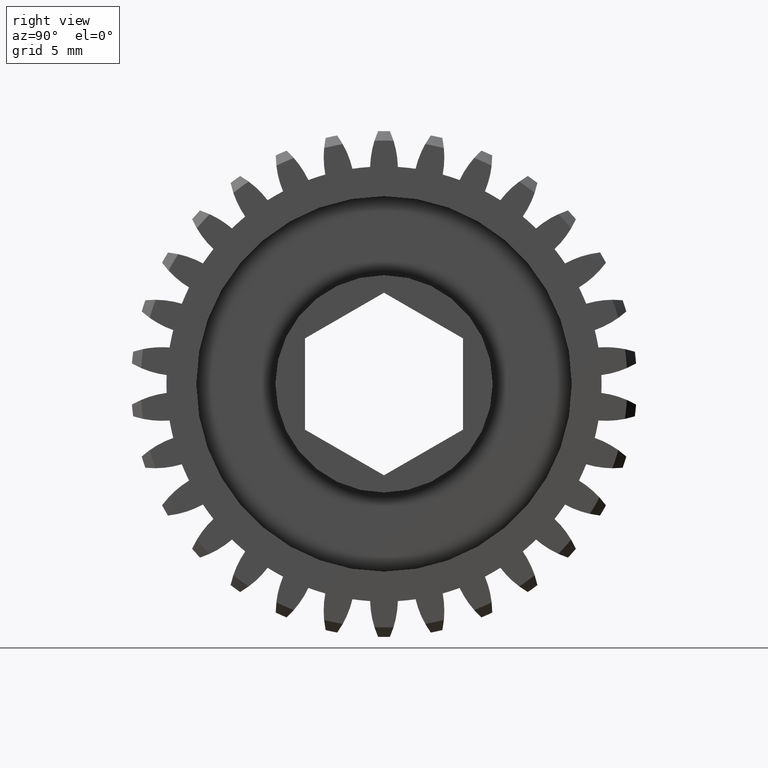
[diagram: clean part render]
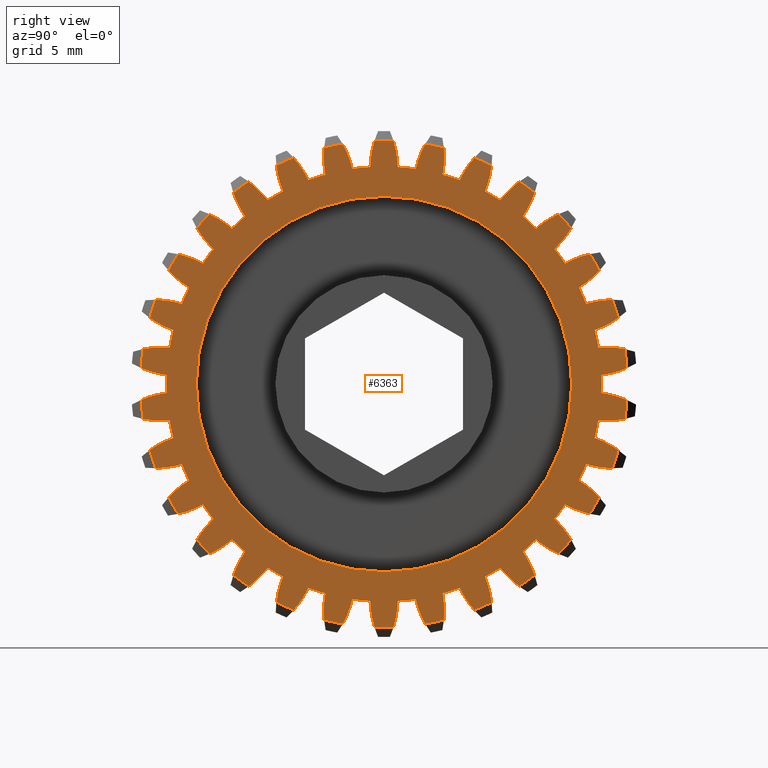
[diagram: same view with one face highlighted and labeled with its STEP entity id]
A machine part, right view. The second image highlights one B-rep face of the part: STEP entity #6363.
In plain terms, the highlighted planar face has unit normal (-1, 0, 0).
Its self-contained STEP definition (entity closure, byte-faithful):
#6 = AXIS2_PLACEMENT_3D ( 'NONE', #4994, #38, #2254 ) ;
#14 = DIRECTION ( 'NONE',  ( 0.0000000000000000000, 0.0000000000000000000, 1.000000000000000000 ) ) ;
#15 = VERTEX_POINT ( 'NONE', #2372 ) ;
#16 = DIRECTION ( 'NONE',  ( -1.000000000000000000, 0.0000000000000000000, 0.0000000000000000000 ) ) ;
#21 = CARTESIAN_POINT ( 'NONE',  ( 0.3750000000000000555, 0.4604154380844314720, -0.5614752150231890893 ) ) ;
#25 = ORIENTED_EDGE ( 'NONE', *, *, #6868, .T. ) ;
#38 = DIRECTION ( 'NONE',  ( -1.000000000000000000, 0.0000000000000000000, 0.0000000000000000000 ) ) ;
#45 = ORIENTED_EDGE ( 'NONE', *, *, #5620, .F. ) ;
#49 = CARTESIAN_POINT ( 'NONE',  ( 0.3750000000000000555, 0.0000000000000000000, 0.0000000000000000000 ) ) ;
#51 = AXIS2_PLACEMENT_3D ( 'NONE', #4435, #6649, #1696 ) ;
#55 = VERTEX_POINT ( 'NONE', #6274 ) ;
#64 = CARTESIAN_POINT ( 'NONE',  ( 0.3750000000000000555, 0.0000000000000000000, 0.0000000000000000000 ) ) ;
#69 = EDGE_CURVE ( 'NONE', #5723, #6603, #5885, .T. ) ;
#77 = CARTESIAN_POINT ( 'NONE',  ( 0.3750000000000000555, 0.0000000000000000000, 0.0000000000000000000 ) ) ;
#83 = AXIS2_PLACEMENT_3D ( 'NONE', #1529, #3736, #5927 ) ;
#91 = EDGE_CURVE ( 'NONE', #2362, #5198, #7025, .T. ) ;
#107 = CIRCLE ( 'NONE', #5965, 0.6879999999999998339 ) ;
#109 = AXIS2_PLACEMENT_3D ( 'NONE', #4999, #1722, #3922 ) ;
#115 = AXIS2_PLACEMENT_3D ( 'NONE', #2929, #5145, #186 ) ;
#123 = CIRCLE ( 'NONE', #5064, 0.7700000000000000178 ) ;
#125 = VERTEX_POINT ( 'NONE', #4099 ) ;
#134 = VERTEX_POINT ( 'NONE', #6304 ) ;
#138 = DIRECTION ( 'NONE',  ( 0.0000000000000000000, 0.0000000000000000000, 1.000000000000000000 ) ) ;
#139 = CARTESIAN_POINT ( 'NONE',  ( 0.3750000000000000555, -0.7224328088714453422, -0.2664410566450179929 ) ) ;
#143 = DIRECTION ( 'NONE',  ( 1.000000000000000000, -0.0000000000000000000, 0.0000000000000000000 ) ) ;
#147 = ORIENTED_EDGE ( 'NONE', *, *, #5925, .T. ) ;
#152 = CARTESIAN_POINT ( 'NONE',  ( 0.3750000000000000555, 0.0000000000000000000, 0.0000000000000000000 ) ) ;
#165 = AXIS2_PLACEMENT_3D ( 'NONE', #6624, #1662, #3867 ) ;
#174 = CIRCLE ( 'NONE', #4216, 0.6879999999999998339 ) ;
#177 = DIRECTION ( 'NONE',  ( -1.000000000000000000, 0.0000000000000000000, 0.0000000000000000000 ) ) ;
#180 = CARTESIAN_POINT ( 'NONE',  ( 0.3750000000000000555, 0.1091793394158812880, 0.7178556014662886842 ) ) ;
#181 = ORIENTED_EDGE ( 'NONE', *, *, #6150, .T. ) ;
#186 = DIRECTION ( 'NONE',  ( 0.0000000000000000000, 0.0000000000000000000, 1.000000000000000000 ) ) ;
#193 = AXIS2_PLACEMENT_3D ( 'NONE', #4257, #6469, #1510 ) ;
#199 = CIRCLE ( 'NONE', #1115, 0.2999999999999999334 ) ;
#200 = ORIENTED_EDGE ( 'NONE', *, *, #6360, .F. ) ;
#205 = EDGE_CURVE ( 'NONE', #1135, #3763, #1369, .T. ) ;
#208 = AXIS2_PLACEMENT_3D ( 'NONE', #3518, #230, #2441 ) ;
#210 = EDGE_CURVE ( 'NONE', #1563, #1512, #1282, .T. ) ;
#212 = DIRECTION ( 'NONE',  ( -1.000000000000000000, 0.0000000000000000000, 0.0000000000000000000 ) ) ;
#215 = AXIS2_PLACEMENT_3D ( 'NONE', #543, #2749, #4956 ) ;
#218 = EDGE_CURVE ( 'NONE', #1726, #1385, #6566, .T. ) ;
#227 = CIRCLE ( 'NONE', #4267, 0.7700000000000000178 ) ;
#230 = DIRECTION ( 'NONE',  ( -1.000000000000000000, 0.0000000000000000000, 0.0000000000000000000 ) ) ;
#245 = EDGE_CURVE ( 'NONE', #603, #4170, #5684, .T. ) ;
#251 = DIRECTION ( 'NONE',  ( -1.000000000000000000, 0.0000000000000000000, 0.0000000000000000000 ) ) ;
#252 = EDGE_CURVE ( 'NONE', #4676, #6004, #4749, .T. ) ;
#254 = DIRECTION ( 'NONE',  ( 0.0000000000000000000, 0.5877852522924741363, 0.8090169943749466741 ) ) ;
#255 = CARTESIAN_POINT ( 'NONE',  ( 0.3750000000000000555, 0.6489829762193513041, 0.3256653025566094706 ) ) ;
#261 = EDGE_CURVE ( 'NONE', #2872, #5731, #123, .T. ) ;
#263 = DIRECTION ( 'NONE',  ( 0.0000000000000000000, 0.9945218953682737340, 0.1045284632676503761 ) ) ;
#270 = ORIENTED_EDGE ( 'NONE', *, *, #5100, .F. ) ;
#271 = EDGE_CURVE ( 'NONE', #3347, #4295, #4952, .T. ) ;
#277 = EDGE_CURVE ( 'NONE', #7036, #2021, #891, .T. ) ;
#287 = AXIS2_PLACEMENT_3D ( 'NONE', #6202, #1251, #3469 ) ;
#288 = EDGE_CURVE ( 'NONE', #4084, #4557, #5071, .T. ) ;
#290 = DIRECTION ( 'NONE',  ( -1.000000000000000000, 0.0000000000000000000, 0.0000000000000000000 ) ) ;
#293 = VERTEX_POINT ( 'NONE', #980 ) ;
#294 = CIRCLE ( 'NONE', #1223, 0.2999999999999999334 ) ;
#300 = EDGE_CURVE ( 'NONE', #922, #812, #3214, .T. ) ;
#301 = ORIENTED_EDGE ( 'NONE', *, *, #5426, .F. ) ;
#309 = CIRCLE ( 'NONE', #4351, 0.2999999999999999889 ) ;
#315 = AXIS2_PLACEMENT_3D ( 'NONE', #2123, #4321, #6530 ) ;
#317 = DIRECTION ( 'NONE',  ( -1.000000000000000000, 0.0000000000000000000, 0.0000000000000000000 ) ) ;
#343 = CARTESIAN_POINT ( 'NONE',  ( 0.3750000000000000555, 0.0000000000000000000, 0.0000000000000000000 ) ) ;
#352 = DIRECTION ( 'NONE',  ( 0.0000000000000000000, 0.0000000000000000000, 1.000000000000000000 ) ) ;
#354 = ORIENTED_EDGE ( 'NONE', *, *, #3573, .F. ) ;
#360 = ORIENTED_EDGE ( 'NONE', *, *, #1427, .F. ) ;
#361 = DIRECTION ( 'NONE',  ( -1.000000000000000000, 0.0000000000000000000, 0.0000000000000000000 ) ) ;
#371 = DIRECTION ( 'NONE',  ( 0.0000000000000000000, 0.0000000000000000000, 1.000000000000000000 ) ) ;
#375 = DIRECTION ( 'NONE',  ( 0.0000000000000000000, 0.0000000000000000000, 1.000000000000000000 ) ) ;
#381 = VERTEX_POINT ( 'NONE', #7164 ) ;
#387 = ORIENTED_EDGE ( 'NONE', *, *, #5602, .T. ) ;
#388 = DIRECTION ( 'NONE',  ( -1.000000000000000000, 0.0000000000000000000, 0.0000000000000000000 ) ) ;
#399 = AXIS2_PLACEMENT_3D ( 'NONE', #6021, #4405, #6616 ) ;
#403 = CARTESIAN_POINT ( 'NONE',  ( 0.3750000000000000555, -0.5102728768395102810, 0.5165833755297833951 ) ) ;
#406 = EDGE_CURVE ( 'NONE', #4811, #603, #2173, .T. ) ;
#415 = CIRCLE ( 'NONE', #4458, 0.7700000000000000178 ) ;
#420 = CARTESIAN_POINT ( 'NONE',  ( 0.3750000000000000555, 0.7253354619407043069, 0.03354490070160211224 ) ) ;
#423 = CARTESIAN_POINT ( 'NONE',  ( 0.3750000000000000555, -0.5670915174108238643, 0.4534798822356999604 ) ) ;
#430 = AXIS2_PLACEMENT_3D ( 'NONE', #4255, #6468, #1509 ) ;
#440 = DIRECTION ( 'NONE',  ( 0.0000000000000000000, 0.0000000000000000000, 1.000000000000000000 ) ) ;
#450 = ORIENTED_EDGE ( 'NONE', *, *, #6596, .F. ) ;
#460 = ORIENTED_EDGE ( 'NONE', *, *, #494, .F. ) ;
#488 = CARTESIAN_POINT ( 'NONE',  ( 0.3750000000000000555, 0.5670915174108268619, -0.4534798822356962411 ) ) ;
#494 = EDGE_CURVE ( 'NONE', #2394, #4012, #1620, .T. ) ;
#500 = DIRECTION ( 'NONE',  ( 0.0000000000000000000, 0.0000000000000000000, 1.000000000000000000 ) ) ;
#501 = EDGE_CURVE ( 'NONE', #622, #4054, #4294, .T. ) ;
#518 = DIRECTION ( 'NONE',  ( 0.0000000000000000000, 0.0000000000000000000, 1.000000000000000000 ) ) ;
#519 = DIRECTION ( 'NONE',  ( 1.000000000000000000, -0.0000000000000000000, -0.0000000000000000000 ) ) ;
#531 = CIRCLE ( 'NONE', #1453, 0.2999999999999999334 ) ;
#534 = CARTESIAN_POINT ( 'NONE',  ( 0.3750000000000000555, -0.2391870083714269235, -0.6450841611962943034 ) ) ;
#538 = VERTEX_POINT ( 'NONE', #1862 ) ;
#541 = CARTESIAN_POINT ( 'NONE',  ( 0.3750000000000000555, 0.0000000000000000000, 0.0000000000000000000 ) ) ;
#543 = CARTESIAN_POINT ( 'NONE',  ( 0.3750000000000000555, 0.0000000000000000000, 0.0000000000000000000 ) ) ;
#557 = ORIENTED_EDGE ( 'NONE', *, *, #3594, .T. ) ;
#584 = CARTESIAN_POINT ( 'NONE',  ( 0.3750000000000000555, 0.1922378879617554215, 0.7002009619700753085 ) ) ;
#603 = VERTEX_POINT ( 'NONE', #4092 ) ;
#622 = VERTEX_POINT ( 'NONE', #3029 ) ;
#636 = AXIS2_PLACEMENT_3D ( 'NONE', #5598, #645, #2844 ) ;
#645 = DIRECTION ( 'NONE',  ( -1.000000000000000000, 0.0000000000000000000, 0.0000000000000000000 ) ) ;
#648 = AXIS2_PLACEMENT_3D ( 'NONE', #1117, #3335, #5534 ) ;
#654 = DIRECTION ( 'NONE',  ( 0.0000000000000000000, 0.0000000000000000000, 1.000000000000000000 ) ) ;
#662 = CARTESIAN_POINT ( 'NONE',  ( 0.3750000000000000555, 0.4766445183661097151, 0.6047396159600753052 ) ) ;
#667 = AXIS2_PLACEMENT_3D ( 'NONE', #2393, #6258, #1298 ) ;
#668 = ORIENTED_EDGE ( 'NONE', *, *, #1009, .F. ) ;
#669 = AXIS2_PLACEMENT_3D ( 'NONE', #5463, #519, #2718 ) ;
#674 = CARTESIAN_POINT ( 'NONE',  ( 0.3750000000000000555, 0.6512497080986545672, 0.4108209070889856096 ) ) ;
#690 = EDGE_CURVE ( 'NONE', #3093, #5796, #5670, .T. ) ;
#693 = CIRCLE ( 'NONE', #1705, 0.6879999999999998339 ) ;
#694 = CIRCLE ( 'NONE', #5658, 0.2999999999999999334 ) ;
#699 = CARTESIAN_POINT ( 'NONE',  ( 0.3750000000000000555, -0.3336169947953496195, 0.6449313866571658727 ) ) ;
#702 = AXIS2_PLACEMENT_3D ( 'NONE', #1343, #5214, #263 ) ;
#703 = ORIENTED_EDGE ( 'NONE', *, *, #406, .F. ) ;
#707 = CARTESIAN_POINT ( 'NONE',  ( 0.3750000000000000555, 0.0000000000000000000, 0.0000000000000000000 ) ) ;
#743 = VERTEX_POINT ( 'NONE', #3175 ) ;
#753 = AXIS2_PLACEMENT_3D ( 'NONE', #5910, #961, #3162 ) ;
#763 = AXIS2_PLACEMENT_3D ( 'NONE', #6372, #1405, #3613 ) ;
#767 = DIRECTION ( 'NONE',  ( 1.000000000000000000, -0.0000000000000000000, -0.0000000000000000000 ) ) ;
#770 = EDGE_CURVE ( 'NONE', #2525, #4212, #6255, .T. ) ;
#803 = AXIS2_PLACEMENT_3D ( 'NONE', #2720, #4925, #7132 ) ;
#810 = CIRCLE ( 'NONE', #4844, 0.6879999999999998339 ) ;
#812 = VERTEX_POINT ( 'NONE', #4909 ) ;
#823 = EDGE_CURVE ( 'NONE', #922, #3286, #3256, .T. ) ;
#841 = VERTEX_POINT ( 'NONE', #1660 ) ;
#850 = EDGE_LOOP ( 'NONE', ( #6410, #6275, #45, #450, #1690, #991, #3221, #5765, #25, #2971, #1665, #1973, #3960, #2829, #4425, #3165, #5694, #4025, #914, #200, #2724, #354, #6690, #270, #557, #3734, #5798, #5868, #6355, #6784, #3710, #1754, #2609, #6381, #2055, #7162, #3116, #5887, #5105, #6496, #5287, #181, #2194, #4438, #6248, #4825, #6806, #4969, #1073, #5216, #6524, #703, #4577, #4289, #2640, #460, #5159, #895, #4381, #6041, #5007, #997, #4649, #2259, #3899, #2226, #301, #4683, #1832, #6526, #3028, #916, #2594, #5196, #6819, #2134, #5560, #3173, #3720, #4701, #2831, #5149, #360, #5789, #2622, #2740, #2155, #890, #6393, #6927, #3224, #1813, #3083, #4364, #4201, #2542, #1098, #2200, #1997, #4993, #6993, #4307, #1393, #5363, #6152, #668, #387, #3923, #3085, #6535, #4567, #5823, #1908, #4180, #147, #1910, #1174, #1635, #1692, #4899, #6295, #3022 ) ) ;
#858 = DIRECTION ( 'NONE',  ( -1.000000000000000000, 0.0000000000000000000, 0.0000000000000000000 ) ) ;
#865 = CIRCLE ( 'NONE', #1804, 0.7699999999999999067 ) ;
#873 = CARTESIAN_POINT ( 'NONE',  ( 0.3750000000000000555, 0.7253354619407046400, -0.03354490070159238391 ) ) ;
#878 = CARTESIAN_POINT ( 'NONE',  ( 0.3750000000000000555, 0.7164595188476288179, 0.1179938581640563589 ) ) ;
#879 = DIRECTION ( 'NONE',  ( -1.000000000000000000, 0.0000000000000000000, 0.0000000000000000000 ) ) ;
#883 = VERTEX_POINT ( 'NONE', #5569 ) ;
#885 = CIRCLE ( 'NONE', #4927, 0.2999999999999999334 ) ;
#890 = ORIENTED_EDGE ( 'NONE', *, *, #1817, .F. ) ;
#891 = CIRCLE ( 'NONE', #3795, 0.2999999999999999334 ) ;
#895 = ORIENTED_EDGE ( 'NONE', *, *, #261, .T. ) ;
#897 = EDGE_CURVE ( 'NONE', #1618, #125, #5871, .T. ) ;
#903 = CIRCLE ( 'NONE', #430, 0.2999999999999999334 ) ;
#914 = ORIENTED_EDGE ( 'NONE', *, *, #5191, .F. ) ;
#916 = ORIENTED_EDGE ( 'NONE', *, *, #2495, .F. ) ;
#922 = VERTEX_POINT ( 'NONE', #6702 ) ;
#934 = CARTESIAN_POINT ( 'NONE',  ( 0.3750000000000000555, 0.7224328088714470075, 0.2664410566450132190 ) ) ;
#935 = DIRECTION ( 'NONE',  ( -1.000000000000000000, 0.0000000000000000000, 0.0000000000000000000 ) ) ;
#946 = CARTESIAN_POINT ( 'NONE',  ( 0.3750000000000000555, 0.0000000000000000000, 0.0000000000000000000 ) ) ;
#954 = VERTEX_POINT ( 'NONE', #6181 ) ;
#959 = DIRECTION ( 'NONE',  ( 0.0000000000000000000, 0.0000000000000000000, 1.000000000000000000 ) ) ;
#961 = DIRECTION ( 'NONE',  ( -1.000000000000000000, 0.0000000000000000000, 0.0000000000000000000 ) ) ;
#962 = EDGE_CURVE ( 'NONE', #1266, #2045, #3474, .T. ) ;
#971 = CIRCLE ( 'NONE', #5013, 0.6879999999999998339 ) ;
#980 = CARTESIAN_POINT ( 'NONE',  ( 0.3750000000000000555, 0.1304716807699821957, -0.7588656933325262921 ) ) ;
#991 = ORIENTED_EDGE ( 'NONE', *, *, #4870, .F. ) ;
#997 = ORIENTED_EDGE ( 'NONE', *, *, #6987, .T. ) ;
#999 = CIRCLE ( 'NONE', #5045, 0.2999999999999999334 ) ;
#1008 = CARTESIAN_POINT ( 'NONE',  ( 0.3750000000000000555, 0.0000000000000000000, 0.0000000000000000000 ) ) ;
#1009 = EDGE_CURVE ( 'NONE', #6197, #1618, #4694, .T. ) ;
#1025 = DIRECTION ( 'NONE',  ( 1.000000000000000000, -0.0000000000000000000, 0.0000000000000000000 ) ) ;
#1028 = AXIS2_PLACEMENT_3D ( 'NONE', #1171, #3380, #5583 ) ;
#1031 = VERTEX_POINT ( 'NONE', #1885 ) ;
#1034 = DIRECTION ( 'NONE',  ( -1.000000000000000000, 0.0000000000000000000, 0.0000000000000000000 ) ) ;
#1045 = EDGE_CURVE ( 'NONE', #3390, #4394, #4135, .T. ) ;
#1051 = EDGE_CURVE ( 'NONE', #4868, #1563, #3349, .T. ) ;
#1068 = VERTEX_POINT ( 'NONE', #6510 ) ;
#1073 = ORIENTED_EDGE ( 'NONE', *, *, #4222, .F. ) ;
#1074 = DIRECTION ( 'NONE',  ( 0.0000000000000000000, -0.9945218953682722907, 0.1045284632676635600 ) ) ;
#1078 = CARTESIAN_POINT ( 'NONE',  ( 0.3750000000000000555, 0.0000000000000000000, 0.0000000000000000000 ) ) ;
#1088 = DIRECTION ( 'NONE',  ( 0.0000000000000000000, -0.7431448254773999063, -0.6691306063588519093 ) ) ;
#1089 = CARTESIAN_POINT ( 'NONE',  ( 0.3750000000000000555, 0.1856646018324470959, 0.6624746452705935207 ) ) ;
#1098 = ORIENTED_EDGE ( 'NONE', *, *, #6612, .F. ) ;
#1104 = CARTESIAN_POINT ( 'NONE',  ( 0.3750000000000000555, -0.7025107648012635098, -0.1836175864402938285 ) ) ;
#1114 = CARTESIAN_POINT ( 'NONE',  ( 0.3750000000000000555, 0.09983965969114379224, -0.6807172998776778172 ) ) ;
#1115 = AXIS2_PLACEMENT_3D ( 'NONE', #878, #3077, #5294 ) ;
#1116 = CARTESIAN_POINT ( 'NONE',  ( 0.3750000000000000555, 0.3680807370392978339, -0.5812577492133821355 ) ) ;
#1117 = CARTESIAN_POINT ( 'NONE',  ( 0.3750000000000000555, 0.0000000000000000000, 0.0000000000000000000 ) ) ;
#1122 = AXIS2_PLACEMENT_3D ( 'NONE', #707, #2899, #5114 ) ;
#1125 = DIRECTION ( 'NONE',  ( -1.000000000000000000, 0.0000000000000000000, 0.0000000000000000000 ) ) ;
#1133 = AXIS2_PLACEMENT_3D ( 'NONE', #1684, #3884, #6089 ) ;
#1135 = VERTEX_POINT ( 'NONE', #5483 ) ;
#1138 = AXIS2_PLACEMENT_3D ( 'NONE', #4800, #7008, #2063 ) ;
#1147 = CARTESIAN_POINT ( 'NONE',  ( 0.3750000000000000555, -0.1304716807699772274, 0.7588656933325272913 ) ) ;
#1168 = DIRECTION ( 'NONE',  ( -1.000000000000000000, 0.0000000000000000000, 0.0000000000000000000 ) ) ;
#1171 = CARTESIAN_POINT ( 'NONE',  ( 0.3750000000000000555, 0.04245706296451502715, -0.7248683953078947084 ) ) ;
#1174 = ORIENTED_EDGE ( 'NONE', *, *, #3721, .F. ) ;
#1182 = VERTEX_POINT ( 'NONE', #3367 ) ;
#1195 = DIRECTION ( 'NONE',  ( -1.000000000000000000, 0.0000000000000000000, 0.0000000000000000000 ) ) ;
#1197 = DIRECTION ( 'NONE',  ( 0.0000000000000000000, 0.0000000000000000000, 1.000000000000000000 ) ) ;
#1212 = CARTESIAN_POINT ( 'NONE',  ( 0.3750000000000000555, -0.6762708568267066234, 0.2643757192305812298 ) ) ;
#1220 = CARTESIAN_POINT ( 'NONE',  ( 0.3750000000000000555, 0.0000000000000000000, 0.0000000000000000000 ) ) ;
#1223 = AXIS2_PLACEMENT_3D ( 'NONE', #3947, #6151, #1197 ) ;
#1234 = VERTEX_POINT ( 'NONE', #1816 ) ;
#1251 = DIRECTION ( 'NONE',  ( -1.000000000000000000, 0.0000000000000000000, 0.0000000000000000000 ) ) ;
#1256 = AXIS2_PLACEMENT_3D ( 'NONE', #255, #2466, #4659 ) ;
#1262 = AXIS2_PLACEMENT_3D ( 'NONE', #5828, #879, #3079 ) ;
#1265 = EDGE_CURVE ( 'NONE', #7068, #4170, #6368, .T. ) ;
#1266 = VERTEX_POINT ( 'NONE', #3510 ) ;
#1279 = CARTESIAN_POINT ( 'NONE',  ( 0.3750000000000000555, -0.6762708568267030707, -0.2643757192305904447 ) ) ;
#1281 = DIRECTION ( 'NONE',  ( 0.0000000000000000000, 0.0000000000000000000, 1.000000000000000000 ) ) ;
#1282 = CIRCLE ( 'NONE', #1949, 0.6879999999999998339 ) ;
#1294 = DIRECTION ( 'NONE',  ( 0.0000000000000000000, -0.5877852522924633671, 0.8090169943749545567 ) ) ;
#1298 = DIRECTION ( 'NONE',  ( 0.0000000000000000000, 0.0000000000000000000, 1.000000000000000000 ) ) ;
#1300 = DIRECTION ( 'NONE',  ( 0.0000000000000000000, -0.8660254037844433705, -0.4999999999999920619 ) ) ;
#1309 = DIRECTION ( 'NONE',  ( 0.0000000000000000000, 0.0000000000000000000, 1.000000000000000000 ) ) ;
#1313 = CARTESIAN_POINT ( 'NONE',  ( 0.3750000000000000555, 0.0000000000000000000, 0.0000000000000000000 ) ) ;
#1319 = EDGE_CURVE ( 'NONE', #841, #5731, #7158, .T. ) ;
#1320 = DIRECTION ( 'NONE',  ( -1.000000000000000000, 0.0000000000000000000, 0.0000000000000000000 ) ) ;
#1326 = CIRCLE ( 'NONE', #5365, 0.2999999999999999334 ) ;
#1331 = AXIS2_PLACEMENT_3D ( 'NONE', #5983, #1034, #3243 ) ;
#1343 = CARTESIAN_POINT ( 'NONE',  ( 0.3750000000000000555, 0.0000000000000000000, 0.0000000000000000000 ) ) ;
#1347 = EDGE_CURVE ( 'NONE', #6183, #134, #6675, .T. ) ;
#1352 = EDGE_CURVE ( 'NONE', #3565, #4774, #7013, .T. ) ;
#1361 = CARTESIAN_POINT ( 'NONE',  ( 0.3750000000000000555, -0.7025107648012661743, 0.1836175864402843083 ) ) ;
#1363 = CARTESIAN_POINT ( 'NONE',  ( 0.3750000000000000555, -0.09983965969113930972, 0.6807172998776784834 ) ) ;
#1369 = CIRCLE ( 'NONE', #2310, 0.7700000000000000178 ) ;
#1370 = CARTESIAN_POINT ( 'NONE',  ( 0.3750000000000000555, 0.2560440807632021198, 0.6794690731872511380 ) ) ;
#1371 = AXIS2_PLACEMENT_3D ( 'NONE', #2211, #4406, #6617 ) ;
#1381 = DIRECTION ( 'NONE',  ( -1.000000000000000000, 0.0000000000000000000, 0.0000000000000000000 ) ) ;
#1384 = DIRECTION ( 'NONE',  ( -1.000000000000000000, 0.0000000000000000000, 0.0000000000000000000 ) ) ;
#1385 = VERTEX_POINT ( 'NONE', #934 ) ;
#1393 = ORIENTED_EDGE ( 'NONE', *, *, #5377, .T. ) ;
#1397 = EDGE_CURVE ( 'NONE', #4352, #3531, #693, .T. ) ;
#1399 = VERTEX_POINT ( 'NONE', #4797 ) ;
#1405 = DIRECTION ( 'NONE',  ( -1.000000000000000000, 0.0000000000000000000, 0.0000000000000000000 ) ) ;
#1415 = CARTESIAN_POINT ( 'NONE',  ( 0.3750000000000000555, 0.0000000000000000000, 0.0000000000000000000 ) ) ;
#1419 = DIRECTION ( 'NONE',  ( 0.0000000000000000000, 0.0000000000000000000, 1.000000000000000000 ) ) ;
#1427 = EDGE_CURVE ( 'NONE', #3531, #6603, #6096, .T. ) ;
#1428 = EDGE_CURVE ( 'NONE', #293, #883, #1828, .T. ) ;
#1431 = CARTESIAN_POINT ( 'NONE',  ( 0.3750000000000000555, 0.0000000000000000000, 0.0000000000000000000 ) ) ;
#1432 = CIRCLE ( 'NONE', #2367, 0.7700000000000000178 ) ;
#1450 = CARTESIAN_POINT ( 'NONE',  ( 0.3750000000000000555, -0.2560440807631976234, -0.6794690731872529144 ) ) ;
#1453 = AXIS2_PLACEMENT_3D ( 'NONE', #180, #2399, #4597 ) ;
#1454 = DIRECTION ( 'NONE',  ( 0.0000000000000000000, 0.0000000000000000000, 1.000000000000000000 ) ) ;
#1456 = CARTESIAN_POINT ( 'NONE',  ( 0.3750000000000000555, 0.5726773110448326598, 0.3812934531492242485 ) ) ;
#1477 = CIRCLE ( 'NONE', #6455, 0.7700000000000000178 ) ;
#1478 = CARTESIAN_POINT ( 'NONE',  ( 0.3750000000000000555, -0.2391870083714359163, 0.6450841611962910838 ) ) ;
#1485 = EDGE_CURVE ( 'NONE', #6247, #841, #6999, .T. ) ;
#1498 = AXIS2_PLACEMENT_3D ( 'NONE', #1607, #5462, #518 ) ;
#1509 = DIRECTION ( 'NONE',  ( 0.0000000000000000000, 0.0000000000000000000, 1.000000000000000000 ) ) ;
#1510 = DIRECTION ( 'NONE',  ( 0.0000000000000000000, 0.0000000000000000000, 1.000000000000000000 ) ) ;
#1511 = DIRECTION ( 'NONE',  ( -1.000000000000000000, 0.0000000000000000000, 0.0000000000000000000 ) ) ;
#1512 = VERTEX_POINT ( 'NONE', #534 ) ;
#1513 = VERTEX_POINT ( 'NONE', #2735 ) ;
#1529 = CARTESIAN_POINT ( 'NONE',  ( 0.3750000000000000555, -0.7253354619407048620, 0.03354490070158760301 ) ) ;
#1540 = CARTESIAN_POINT ( 'NONE',  ( 0.3750000000000000555, 0.6874243454850025303, 0.02813839431303257616 ) ) ;
#1542 = DIRECTION ( 'NONE',  ( -1.000000000000000000, 0.0000000000000000000, 0.0000000000000000000 ) ) ;
#1550 = VERTEX_POINT ( 'NONE', #1147 ) ;
#1552 = CIRCLE ( 'NONE', #2483, 0.7700000000000000178 ) ;
#1556 = CIRCLE ( 'NONE', #2488, 0.6879999999999998339 ) ;
#1558 = DIRECTION ( 'NONE',  ( -1.000000000000000000, 0.0000000000000000000, 0.0000000000000000000 ) ) ;
#1563 = VERTEX_POINT ( 'NONE', #2272 ) ;
#1568 = AXIS2_PLACEMENT_3D ( 'NONE', #584, #4448, #6663 ) ;
#1569 = DIRECTION ( 'NONE',  ( 0.0000000000000000000, 0.0000000000000000000, 1.000000000000000000 ) ) ;
#1591 = AXIS2_PLACEMENT_3D ( 'NONE', #4924, #7130, #2189 ) ;
#1607 = CARTESIAN_POINT ( 'NONE',  ( 0.3750000000000000555, 0.7025107648012622885, 0.1836175864402984081 ) ) ;
#1617 = CARTESIAN_POINT ( 'NONE',  ( 0.3750000000000000555, 0.0000000000000000000, 0.0000000000000000000 ) ) ;
#1618 = VERTEX_POINT ( 'NONE', #6210 ) ;
#1620 = CIRCLE ( 'NONE', #6216, 0.6879999999999998339 ) ;
#1622 = DIRECTION ( 'NONE',  ( 1.000000000000000000, -0.0000000000000000000, -0.0000000000000000000 ) ) ;
#1635 = ORIENTED_EDGE ( 'NONE', *, *, #6119, .F. ) ;
#1641 = DIRECTION ( 'NONE',  ( 0.0000000000000000000, 0.0000000000000000000, 1.000000000000000000 ) ) ;
#1649 = VERTEX_POINT ( 'NONE', #5126 ) ;
#1660 = CARTESIAN_POINT ( 'NONE',  ( 0.3750000000000000555, -0.04387116120150529736, 0.6865998261103997136 ) ) ;
#1662 = DIRECTION ( 'NONE',  ( -1.000000000000000000, 0.0000000000000000000, 0.0000000000000000000 ) ) ;
#1665 = ORIENTED_EDGE ( 'NONE', *, *, #1868, .F. ) ;
#1672 = CIRCLE ( 'NONE', #5713, 0.2999999999999999334 ) ;
#1675 = CARTESIAN_POINT ( 'NONE',  ( 0.3750000000000000555, 0.6874243454850025303, -0.02813839431303257616 ) ) ;
#1681 = AXIS2_PLACEMENT_3D ( 'NONE', #420, #2628, #4830 ) ;
#1684 = CARTESIAN_POINT ( 'NONE',  ( 0.3750000000000000555, 0.0000000000000000000, 0.0000000000000000000 ) ) ;
#1688 = CARTESIAN_POINT ( 'NONE',  ( 0.3750000000000000555, 0.7224328088714471185, -0.2664410566450130524 ) ) ;
#1690 = ORIENTED_EDGE ( 'NONE', *, *, #205, .T. ) ;
#1692 = ORIENTED_EDGE ( 'NONE', *, *, #5811, .T. ) ;
#1696 = DIRECTION ( 'NONE',  ( 0.0000000000000000000, 0.0000000000000000000, 1.000000000000000000 ) ) ;
#1705 = AXIS2_PLACEMENT_3D ( 'NONE', #5341, #388, #2596 ) ;
#1713 = VERTEX_POINT ( 'NONE', #6316 ) ;
#1722 = DIRECTION ( 'NONE',  ( -1.000000000000000000, 0.0000000000000000000, 0.0000000000000000000 ) ) ;
#1726 = VERTEX_POINT ( 'NONE', #5227 ) ;
#1734 = VERTEX_POINT ( 'NONE', #2522 ) ;
#1752 = CARTESIAN_POINT ( 'NONE',  ( 0.3750000000000000555, 0.4390657669892472637, 0.5296841061030092002 ) ) ;
#1754 = ORIENTED_EDGE ( 'NONE', *, *, #6298, .F. ) ;
#1793 = VERTEX_POINT ( 'NONE', #5335 ) ;
#1804 = AXIS2_PLACEMENT_3D ( 'NONE', #2506, #4699, #6916 ) ;
#1805 = EDGE_CURVE ( 'NONE', #2908, #2732, #903, .T. ) ;
#1806 = EDGE_CURVE ( 'NONE', #4394, #2174, #107, .T. ) ;
#1808 = CARTESIAN_POINT ( 'NONE',  ( 0.3750000000000000555, -0.3336169947953409598, -0.6449313866571704246 ) ) ;
#1813 = ORIENTED_EDGE ( 'NONE', *, *, #2941, .F. ) ;
#1814 = CIRCLE ( 'NONE', #5834, 0.5937500000000000000 ) ;
#1816 = CARTESIAN_POINT ( 'NONE',  ( 0.3750000000000000555, -0.3193436084457058621, -0.6093961435264221294 ) ) ;
#1817 = EDGE_CURVE ( 'NONE', #2027, #4325, #5410, .T. ) ;
#1820 = DIRECTION ( 'NONE',  ( 0.0000000000000000000, 0.0000000000000000000, -1.000000000000000000 ) ) ;
#1823 = CARTESIAN_POINT ( 'NONE',  ( 0.3750000000000000555, 0.6065259132548493914, -0.3992030927512786320 ) ) ;
#1828 = CIRCLE ( 'NONE', #4493, 0.7700000000000000178 ) ;
#1832 = ORIENTED_EDGE ( 'NONE', *, *, #2512, .F. ) ;
#1843 = VERTEX_POINT ( 'NONE', #1540 ) ;
#1844 = AXIS2_PLACEMENT_3D ( 'NONE', #1995, #4192, #6402 ) ;
#1858 = DIRECTION ( 'NONE',  ( 1.000000000000000000, 0.0000000000000000000, -0.0000000000000000000 ) ) ;
#1862 = CARTESIAN_POINT ( 'NONE',  ( 0.3750000000000000555, -0.5919611281014690585, -0.4924246366875201786 ) ) ;
#1868 = EDGE_CURVE ( 'NONE', #5488, #5123, #4032, .T. ) ;
#1879 = VERTEX_POINT ( 'NONE', #5436 ) ;
#1881 = CARTESIAN_POINT ( 'NONE',  ( 0.3750000000000000555, -0.3680807370392856770, -0.5812577492133899071 ) ) ;
#1885 = CARTESIAN_POINT ( 'NONE',  ( 0.3750000000000000555, 0.6165484722463395739, -0.3053063729611687482 ) ) ;
#1902 = CIRCLE ( 'NONE', #5924, 0.2999999999999999334 ) ;
#1908 = ORIENTED_EDGE ( 'NONE', *, *, #210, .F. ) ;
#1910 = ORIENTED_EDGE ( 'NONE', *, *, #5302, .F. ) ;
#1917 = CIRCLE ( 'NONE', #5940, 0.6879999999999998339 ) ;
#1918 = DIRECTION ( 'NONE',  ( 0.0000000000000000000, 0.0000000000000000000, 1.000000000000000000 ) ) ;
#1921 = AXIS2_PLACEMENT_3D ( 'NONE', #2751, #4957, #7161 ) ;
#1928 = CARTESIAN_POINT ( 'NONE',  ( 0.3750000000000000555, -0.04245706296450993400, 0.7248683953078951525 ) ) ;
#1938 = CIRCLE ( 'NONE', #5964, 0.2999999999999999334 ) ;
#1949 = AXIS2_PLACEMENT_3D ( 'NONE', #1415, #3622, #5822 ) ;
#1961 = EDGE_CURVE ( 'NONE', #4295, #6086, #6569, .T. ) ;
#1968 = CIRCLE ( 'NONE', #5996, 0.7700000000000000178 ) ;
#1973 = ORIENTED_EDGE ( 'NONE', *, *, #4796, .F. ) ;
#1974 = CARTESIAN_POINT ( 'NONE',  ( 0.3750000000000000555, 0.0000000000000000000, 0.0000000000000000000 ) ) ;
#1977 = CARTESIAN_POINT ( 'NONE',  ( 0.3750000000000000555, -0.7683465519538573707, -0.05043387850065276373 ) ) ;
#1995 = CARTESIAN_POINT ( 'NONE',  ( 0.3750000000000000555, 0.0000000000000000000, 0.0000000000000000000 ) ) ;
#1997 = ORIENTED_EDGE ( 'NONE', *, *, #3193, .T. ) ;
#2015 = VERTEX_POINT ( 'NONE', #2874 ) ;
#2021 = VERTEX_POINT ( 'NONE', #5086 ) ;
#2026 = DIRECTION ( 'NONE',  ( 1.000000000000000000, -0.0000000000000000000, -0.0000000000000000000 ) ) ;
#2027 = VERTEX_POINT ( 'NONE', #6753 ) ;
#2045 = VERTEX_POINT ( 'NONE', #5663 ) ;
#2050 = AXIS2_PLACEMENT_3D ( 'NONE', #343, #2550, #4744 ) ;
#2055 = ORIENTED_EDGE ( 'NONE', *, *, #218, .F. ) ;
#2058 = AXIS2_PLACEMENT_3D ( 'NONE', #4035, #6237, #1281 ) ;
#2061 = DIRECTION ( 'NONE',  ( 0.0000000000000000000, 0.7431448254773954654, 0.6691306063588567943 ) ) ;
#2063 = DIRECTION ( 'NONE',  ( 0.0000000000000000000, 0.0000000000000000000, 1.000000000000000000 ) ) ;
#2077 = CARTESIAN_POINT ( 'NONE',  ( 0.3750000000000000555, 0.6065259132548438403, 0.3992030927512871252 ) ) ;
#2092 = FACE_OUTER_BOUND ( 'NONE', #850, .T. ) ;
#2097 = DIRECTION ( 'NONE',  ( 1.000000000000000000, -0.0000000000000000000, -0.0000000000000000000 ) ) ;
#2123 = CARTESIAN_POINT ( 'NONE',  ( 0.3750000000000000555, 0.0000000000000000000, 0.0000000000000000000 ) ) ;
#2134 = ORIENTED_EDGE ( 'NONE', *, *, #5907, .F. ) ;
#2152 = AXIS2_PLACEMENT_3D ( 'NONE', #3406, #5609, #654 ) ;
#2155 = ORIENTED_EDGE ( 'NONE', *, *, #4768, .T. ) ;
#2167 = DIRECTION ( 'NONE',  ( 0.0000000000000000000, 0.0000000000000000000, 1.000000000000000000 ) ) ;
#2173 = CIRCLE ( 'NONE', #6, 0.6879999999999998339 ) ;
#2174 = VERTEX_POINT ( 'NONE', #1456 ) ;
#2185 = AXIS2_PLACEMENT_3D ( 'NONE', #5204, #251, #2462 ) ;
#2187 = CARTESIAN_POINT ( 'NONE',  ( 0.3750000000000000555, 0.4390657669892546466, -0.5296841061030030939 ) ) ;
#2189 = DIRECTION ( 'NONE',  ( 0.0000000000000000000, 0.0000000000000000000, 1.000000000000000000 ) ) ;
#2194 = ORIENTED_EDGE ( 'NONE', *, *, #5148, .F. ) ;
#2198 = CARTESIAN_POINT ( 'NONE',  ( 0.3750000000000000555, 0.0000000000000000000, 0.0000000000000000000 ) ) ;
#2199 = DIRECTION ( 'NONE',  ( 0.0000000000000000000, 0.0000000000000000000, -1.000000000000000000 ) ) ;
#2200 = ORIENTED_EDGE ( 'NONE', *, *, #6346, .F. ) ;
#2211 = CARTESIAN_POINT ( 'NONE',  ( 0.3750000000000000555, -0.5102728768395031755, -0.5165833755297902785 ) ) ;
#2223 = VERTEX_POINT ( 'NONE', #5357 ) ;
#2226 = ORIENTED_EDGE ( 'NONE', *, *, #4013, .T. ) ;
#2235 = CARTESIAN_POINT ( 'NONE',  ( 0.3750000000000000555, -0.7025107648012635098, 0.1163824135597061188 ) ) ;
#2236 = DIRECTION ( 'NONE',  ( 0.0000000000000000000, 0.0000000000000000000, 1.000000000000000000 ) ) ;
#2241 = DIRECTION ( 'NONE',  ( -1.000000000000000000, 0.0000000000000000000, 0.0000000000000000000 ) ) ;
#2254 = DIRECTION ( 'NONE',  ( 0.0000000000000000000, 0.0000000000000000000, 1.000000000000000000 ) ) ;
#2259 = ORIENTED_EDGE ( 'NONE', *, *, #1961, .F. ) ;
#2264 = DIRECTION ( 'NONE',  ( -1.000000000000000000, 0.0000000000000000000, 0.0000000000000000000 ) ) ;
#2272 = CARTESIAN_POINT ( 'NONE',  ( 0.3750000000000000555, -0.1856646018324425162, -0.6624746452705948530 ) ) ;
#2279 = VERTEX_POINT ( 'NONE', #3230 ) ;
#2280 = AXIS2_PLACEMENT_3D ( 'NONE', #2198, #4397, #6607 ) ;
#2281 = DIRECTION ( 'NONE',  ( -1.000000000000000000, 0.0000000000000000000, 0.0000000000000000000 ) ) ;
#2296 = DIRECTION ( 'NONE',  ( 1.000000000000000000, -0.0000000000000000000, 0.0000000000000000000 ) ) ;
#2310 = AXIS2_PLACEMENT_3D ( 'NONE', #1974, #4168, #6380 ) ;
#2353 = CARTESIAN_POINT ( 'NONE',  ( 0.3750000000000000555, 0.0000000000000000000, 0.0000000000000000000 ) ) ;
#2356 = DIRECTION ( 'NONE',  ( 0.0000000000000000000, 0.2079116908177532363, -0.9781476007338069101 ) ) ;
#2361 = CARTESIAN_POINT ( 'NONE',  ( 0.3750000000000000555, -0.6874243454850024193, -0.02813839431303737440 ) ) ;
#2362 = VERTEX_POINT ( 'NONE', #1675 ) ;
#2364 = DIRECTION ( 'NONE',  ( -1.000000000000000000, 0.0000000000000000000, 0.0000000000000000000 ) ) ;
#2367 = AXIS2_PLACEMENT_3D ( 'NONE', #541, #2747, #4955 ) ;
#2372 = CARTESIAN_POINT ( 'NONE',  ( 0.3750000000000000555, 0.7683465519538575927, 0.05043387850064737221 ) ) ;
#2373 = AXIS2_PLACEMENT_3D ( 'NONE', #4798, #7007, #2061 ) ;
#2379 = CIRCLE ( 'NONE', #3291, 0.7699999999999999067 ) ;
#2384 = CIRCLE ( 'NONE', #6420, 0.2999999999999999334 ) ;
#2391 = AXIS2_PLACEMENT_3D ( 'NONE', #6805, #1858, #4062 ) ;
#2393 = CARTESIAN_POINT ( 'NONE',  ( 0.3750000000000000555, -0.1922378879617506753, -0.7002009619700766407 ) ) ;
#2394 = VERTEX_POINT ( 'NONE', #3375 ) ;
#2397 = DIRECTION ( 'NONE',  ( 0.0000000000000000000, 0.0000000000000000000, 1.000000000000000000 ) ) ;
#2399 = DIRECTION ( 'NONE',  ( -1.000000000000000000, 0.0000000000000000000, 0.0000000000000000000 ) ) ;
#2402 = VERTEX_POINT ( 'NONE', #5034 ) ;
#2407 = CARTESIAN_POINT ( 'NONE',  ( 0.3750000000000000555, -0.4808875712511961331, 0.4920275844057176995 ) ) ;
#2414 = EDGE_CURVE ( 'NONE', #4676, #4557, #5288, .T. ) ;
#2426 = CARTESIAN_POINT ( 'NONE',  ( 0.3750000000000000555, -0.4766445183661055518, -0.6047396159600786358 ) ) ;
#2428 = DIRECTION ( 'NONE',  ( 0.0000000000000000000, 0.0000000000000000000, 1.000000000000000000 ) ) ;
#2441 = DIRECTION ( 'NONE',  ( 0.0000000000000000000, 0.0000000000000000000, 1.000000000000000000 ) ) ;
#2447 = CARTESIAN_POINT ( 'NONE',  ( 0.3750000000000000555, 0.6489829762193513041, -0.3256653025566094706 ) ) ;
#2462 = DIRECTION ( 'NONE',  ( 0.0000000000000000000, 0.0000000000000000000, 1.000000000000000000 ) ) ;
#2466 = DIRECTION ( 'NONE',  ( -1.000000000000000000, 0.0000000000000000000, 0.0000000000000000000 ) ) ;
#2467 = CARTESIAN_POINT ( 'NONE',  ( 0.3750000000000000555, 0.6782527753606828469, -0.1154000550932751668 ) ) ;
#2472 = EDGE_CURVE ( 'NONE', #125, #55, #3670, .T. ) ;
#2473 = CARTESIAN_POINT ( 'NONE',  ( 0.3750000000000000555, 0.7410705433721908042, 0.2090800080018312690 ) ) ;
#2483 = AXIS2_PLACEMENT_3D ( 'NONE', #2995, #5206, #254 ) ;
#2488 = AXIS2_PLACEMENT_3D ( 'NONE', #1220, #5096, #138 ) ;
#2491 = CARTESIAN_POINT ( 'NONE',  ( 0.3750000000000000555, 0.0000000000000000000, 0.0000000000000000000 ) ) ;
#2495 = EDGE_CURVE ( 'NONE', #5305, #5263, #5177, .T. ) ;
#2498 = CARTESIAN_POINT ( 'NONE',  ( 0.3750000000000000555, 0.04245706296450488249, 0.7248683953078953746 ) ) ;
#2504 = DIRECTION ( 'NONE',  ( 0.0000000000000000000, 0.0000000000000000000, 1.000000000000000000 ) ) ;
#2506 = CARTESIAN_POINT ( 'NONE',  ( 0.3750000000000000555, 0.0000000000000000000, 0.0000000000000000000 ) ) ;
#2512 = EDGE_CURVE ( 'NONE', #2015, #1713, #6321, .T. ) ;
#2515 = AXIS2_PLACEMENT_3D ( 'NONE', #4391, #6599, #1641 ) ;
#2516 = VERTEX_POINT ( 'NONE', #4636 ) ;
#2522 = CARTESIAN_POINT ( 'NONE',  ( 0.3750000000000000555, 0.5516038700391338034, -0.5372459125557405013 ) ) ;
#2525 = VERTEX_POINT ( 'NONE', #3551 ) ;
#2529 = DIRECTION ( 'NONE',  ( 0.0000000000000000000, 0.0000000000000000000, 1.000000000000000000 ) ) ;
#2530 = CIRCLE ( 'NONE', #6575, 0.6879999999999998339 ) ;
#2542 = ORIENTED_EDGE ( 'NONE', *, *, #288, .F. ) ;
#2550 = DIRECTION ( 'NONE',  ( -1.000000000000000000, 0.0000000000000000000, 0.0000000000000000000 ) ) ;
#2571 = DIRECTION ( 'NONE',  ( 0.0000000000000000000, 0.0000000000000000000, 1.000000000000000000 ) ) ;
#2585 = CARTESIAN_POINT ( 'NONE',  ( 0.3750000000000000555, -0.7410705433721895830, -0.2090800080018359597 ) ) ;
#2592 = AXIS2_PLACEMENT_3D ( 'NONE', #6148, #1195, #3404 ) ;
#2594 = ORIENTED_EDGE ( 'NONE', *, *, #3282, .F. ) ;
#2595 = CIRCLE ( 'NONE', #6643, 0.7700000000000000178 ) ;
#2596 = DIRECTION ( 'NONE',  ( 0.0000000000000000000, 0.0000000000000000000, 1.000000000000000000 ) ) ;
#2609 = ORIENTED_EDGE ( 'NONE', *, *, #5999, .F. ) ;
#2611 = AXIS2_PLACEMENT_3D ( 'NONE', #3249, #5444, #500 ) ;
#2612 = DIRECTION ( 'NONE',  ( -1.000000000000000000, 0.0000000000000000000, 0.0000000000000000000 ) ) ;
#2622 = ORIENTED_EDGE ( 'NONE', *, *, #3226, .F. ) ;
#2625 = CARTESIAN_POINT ( 'NONE',  ( 0.3750000000000000555, -0.6489829762193536355, 0.3256653025566049742 ) ) ;
#2627 = CARTESIAN_POINT ( 'NONE',  ( 0.3750000000000000555, 0.6782527753606812926, 0.1154000550932841318 ) ) ;
#2628 = DIRECTION ( 'NONE',  ( -1.000000000000000000, 0.0000000000000000000, 0.0000000000000000000 ) ) ;
#2634 = DIRECTION ( 'NONE',  ( -1.000000000000000000, 0.0000000000000000000, 0.0000000000000000000 ) ) ;
#2640 = ORIENTED_EDGE ( 'NONE', *, *, #7063, .F. ) ;
#2669 = CIRCLE ( 'NONE', #6613, 0.7699999999999999067 ) ;
#2701 = CARTESIAN_POINT ( 'NONE',  ( 0.3750000000000000555, 0.5395986446440507178, 0.4268223315365579085 ) ) ;
#2709 = CIRCLE ( 'NONE', #3636, 0.7700000000000000178 ) ;
#2718 = DIRECTION ( 'NONE',  ( 0.0000000000000000000, -0.7431448254773862505, 0.6691306063588671194 ) ) ;
#2720 = CARTESIAN_POINT ( 'NONE',  ( 0.3750000000000000555, 0.6762708568267085107, -0.2643757192305765114 ) ) ;
#2724 = ORIENTED_EDGE ( 'NONE', *, *, #2859, .T. ) ;
#2732 = VERTEX_POINT ( 'NONE', #4981 ) ;
#2735 = CARTESIAN_POINT ( 'NONE',  ( 0.3750000000000000555, 0.2391870083714399131, -0.6450841611962897515 ) ) ;
#2740 = ORIENTED_EDGE ( 'NONE', *, *, #6054, .F. ) ;
#2742 = EDGE_CURVE ( 'NONE', #1031, #4212, #6799, .T. ) ;
#2747 = DIRECTION ( 'NONE',  ( 1.000000000000000000, -0.0000000000000000000, -0.0000000000000000000 ) ) ;
#2749 = DIRECTION ( 'NONE',  ( 1.000000000000000000, -0.0000000000000000000, 0.0000000000000000000 ) ) ;
#2751 = CARTESIAN_POINT ( 'NONE',  ( 0.3750000000000000555, 0.0000000000000000000, 0.0000000000000000000 ) ) ;
#2752 = VERTEX_POINT ( 'NONE', #6648 ) ;
#2766 = CARTESIAN_POINT ( 'NONE',  ( 0.3750000000000000555, -0.7025107648012635098, -0.1836175864402938285 ) ) ;
#2829 = ORIENTED_EDGE ( 'NONE', *, *, #4761, .F. ) ;
#2831 = ORIENTED_EDGE ( 'NONE', *, *, #6399, .F. ) ;
#2833 = CIRCLE ( 'NONE', #648, 0.7700000000000000178 ) ;
#2838 = EDGE_CURVE ( 'NONE', #538, #3565, #3449, .T. ) ;
#2844 = DIRECTION ( 'NONE',  ( 0.0000000000000000000, 0.0000000000000000000, 1.000000000000000000 ) ) ;
#2859 = EDGE_CURVE ( 'NONE', #6516, #4949, #2669, .T. ) ;
#2863 = AXIS2_PLACEMENT_3D ( 'NONE', #1008, #3213, #5420 ) ;
#2872 = VERTEX_POINT ( 'NONE', #3503 ) ;
#2873 = AXIS2_PLACEMENT_3D ( 'NONE', #64, #2281, #4480 ) ;
#2874 = CARTESIAN_POINT ( 'NONE',  ( 0.3750000000000000555, -0.4278502959698747277, 0.6401906936518919622 ) ) ;
#2893 = DIRECTION ( 'NONE',  ( -1.000000000000000000, 0.0000000000000000000, 0.0000000000000000000 ) ) ;
#2899 = DIRECTION ( 'NONE',  ( -1.000000000000000000, 0.0000000000000000000, 0.0000000000000000000 ) ) ;
#2908 = VERTEX_POINT ( 'NONE', #1881 ) ;
#2929 = CARTESIAN_POINT ( 'NONE',  ( 0.3750000000000000555, -0.3917184671453523559, -0.6113864859555784292 ) ) ;
#2938 = CARTESIAN_POINT ( 'NONE',  ( 0.3750000000000000555, -0.2853976109132173589, 0.7151560694596864609 ) ) ;
#2939 = CIRCLE ( 'NONE', #6986, 0.2999999999999999889 ) ;
#2941 = EDGE_CURVE ( 'NONE', #6168, #3334, #6745, .T. ) ;
#2955 = CARTESIAN_POINT ( 'NONE',  ( 0.3750000000000000555, 0.1856646018324557834, -0.6624746452705910782 ) ) ;
#2964 = DIRECTION ( 'NONE',  ( 0.0000000000000000000, -0.2079116908177468526, 0.9781476007338082423 ) ) ;
#2971 = ORIENTED_EDGE ( 'NONE', *, *, #3820, .F. ) ;
#2992 = AXIS2_PLACEMENT_3D ( 'NONE', #6079, #1125, #3343 ) ;
#2995 = CARTESIAN_POINT ( 'NONE',  ( 0.3750000000000000555, 0.0000000000000000000, 0.0000000000000000000 ) ) ;
#3022 = ORIENTED_EDGE ( 'NONE', *, *, #3607, .F. ) ;
#3028 = ORIENTED_EDGE ( 'NONE', *, *, #6033, .F. ) ;
#3029 = CARTESIAN_POINT ( 'NONE',  ( 0.3750000000000000555, 0.4278502959698747277, -0.6401906936518919622 ) ) ;
#3052 = EDGE_CURVE ( 'NONE', #6966, #2027, #3312, .T. ) ;
#3056 = DIRECTION ( 'NONE',  ( 0.0000000000000000000, 0.0000000000000000000, 1.000000000000000000 ) ) ;
#3070 = DIRECTION ( 'NONE',  ( -1.000000000000000000, 0.0000000000000000000, 0.0000000000000000000 ) ) ;
#3076 = CARTESIAN_POINT ( 'NONE',  ( 0.3750000000000000555, 0.7410705433721936908, -0.2090800080018209994 ) ) ;
#3077 = DIRECTION ( 'NONE',  ( -1.000000000000000000, 0.0000000000000000000, 0.0000000000000000000 ) ) ;
#3079 = DIRECTION ( 'NONE',  ( 0.0000000000000000000, 0.0000000000000000000, 1.000000000000000000 ) ) ;
#3083 = ORIENTED_EDGE ( 'NONE', *, *, #4641, .F. ) ;
#3085 = ORIENTED_EDGE ( 'NONE', *, *, #6499, .F. ) ;
#3092 = CARTESIAN_POINT ( 'NONE',  ( 0.3750000000000000555, 0.0000000000000000000, 0.0000000000000000000 ) ) ;
#3093 = VERTEX_POINT ( 'NONE', #2627 ) ;
#3094 = CIRCLE ( 'NONE', #7137, 0.2999999999999999334 ) ;
#3111 = CARTESIAN_POINT ( 'NONE',  ( 0.3750000000000000555, -0.5670915174108177581, -0.4534798822357075654 ) ) ;
#3116 = ORIENTED_EDGE ( 'NONE', *, *, #300, .F. ) ;
#3119 = CARTESIAN_POINT ( 'NONE',  ( 0.3750000000000000555, -0.7164595188476294840, 0.1179938581640517098 ) ) ;
#3134 = DIRECTION ( 'NONE',  ( 0.0000000000000000000, 0.0000000000000000000, 1.000000000000000000 ) ) ;
#3147 = DIRECTION ( 'NONE',  ( 1.000000000000000000, 0.0000000000000000000, -0.0000000000000000000 ) ) ;
#3162 = DIRECTION ( 'NONE',  ( 0.0000000000000000000, 0.0000000000000000000, 1.000000000000000000 ) ) ;
#3165 = ORIENTED_EDGE ( 'NONE', *, *, #3735, .F. ) ;
#3170 = CARTESIAN_POINT ( 'NONE',  ( 0.3750000000000000555, -0.7683465519538580368, 0.05043387850064221661 ) ) ;
#3173 = ORIENTED_EDGE ( 'NONE', *, *, #4271, .T. ) ;
#3174 = AXIS2_PLACEMENT_3D ( 'NONE', #1617, #3825, #6015 ) ;
#3175 = CARTESIAN_POINT ( 'NONE',  ( 0.3750000000000000555, 0.6665521730836424519, 0.1704470608648732399 ) ) ;
#3183 = CARTESIAN_POINT ( 'NONE',  ( 0.3750000000000000555, 0.4604154380844238115, 0.5614752150231950845 ) ) ;
#3192 = AXIS2_PLACEMENT_3D ( 'NONE', #4068, #6269, #1309 ) ;
#3193 = EDGE_CURVE ( 'NONE', #6163, #2516, #4466, .T. ) ;
#3204 = AXIS2_PLACEMENT_3D ( 'NONE', #6342, #1381, #3590 ) ;
#3209 = CARTESIAN_POINT ( 'NONE',  ( 0.3750000000000000555, -0.6782527753606819587, 0.1154000550932795799 ) ) ;
#3213 = DIRECTION ( 'NONE',  ( 1.000000000000000000, -0.0000000000000000000, -0.0000000000000000000 ) ) ;
#3214 = CIRCLE ( 'NONE', #4813, 0.2999999999999999334 ) ;
#3218 = CARTESIAN_POINT ( 'NONE',  ( 0.3750000000000000555, 0.5919611281014791615, -0.4924246366875079106 ) ) ;
#3221 = ORIENTED_EDGE ( 'NONE', *, *, #5715, .F. ) ;
#3224 = ORIENTED_EDGE ( 'NONE', *, *, #4014, .T. ) ;
#3226 = EDGE_CURVE ( 'NONE', #3228, #4352, #999, .T. ) ;
#3228 = VERTEX_POINT ( 'NONE', #2235 ) ;
#3229 = CIRCLE ( 'NONE', #115, 0.2999999999999999334 ) ;
#3230 = CARTESIAN_POINT ( 'NONE',  ( 0.3750000000000000555, -0.6512497080986575648, 0.4108209070889812797 ) ) ;
#3233 = DIRECTION ( 'NONE',  ( 0.0000000000000000000, 0.7431448254773909134, -0.6691306063588617903 ) ) ;
#3243 = DIRECTION ( 'NONE',  ( 0.0000000000000000000, 0.0000000000000000000, 1.000000000000000000 ) ) ;
#3247 = EDGE_CURVE ( 'NONE', #4429, #6183, #5958, .T. ) ;
#3249 = CARTESIAN_POINT ( 'NONE',  ( 0.3750000000000000555, 0.0000000000000000000, 0.0000000000000000000 ) ) ;
#3251 = CARTESIAN_POINT ( 'NONE',  ( 0.3750000000000000555, 0.5670915174108209778, 0.4534798822357037351 ) ) ;
#3256 = CIRCLE ( 'NONE', #6350, 0.7700000000000000178 ) ;
#3261 = CARTESIAN_POINT ( 'NONE',  ( 0.3750000000000000555, 0.7620421292793251311, 0.1104164534996136260 ) ) ;
#3280 = CIRCLE ( 'NONE', #165, 0.6879999999999998339 ) ;
#3282 = EDGE_CURVE ( 'NONE', #1266, #5305, #309, .T. ) ;
#3286 = VERTEX_POINT ( 'NONE', #674 ) ;
#3291 = AXIS2_PLACEMENT_3D ( 'NONE', #1431, #3638, #5838 ) ;
#3292 = DIRECTION ( 'NONE',  ( 1.000000000000000000, 0.0000000000000000000, -0.0000000000000000000 ) ) ;
#3312 = CIRCLE ( 'NONE', #193, 0.6879999999999998339 ) ;
#3320 = DIRECTION ( 'NONE',  ( -1.000000000000000000, 0.0000000000000000000, 0.0000000000000000000 ) ) ;
#3330 = CIRCLE ( 'NONE', #215, 0.7700000000000001288 ) ;
#3334 = VERTEX_POINT ( 'NONE', #5120 ) ;
#3335 = DIRECTION ( 'NONE',  ( 1.000000000000000000, -0.0000000000000000000, -0.0000000000000000000 ) ) ;
#3338 = CIRCLE ( 'NONE', #1138, 0.2999999999999999334 ) ;
#3343 = DIRECTION ( 'NONE',  ( 0.0000000000000000000, 0.0000000000000000000, 1.000000000000000000 ) ) ;
#3344 = AXIS2_PLACEMENT_3D ( 'NONE', #4316, #6523, #1569 ) ;
#3347 = VERTEX_POINT ( 'NONE', #2938 ) ;
#3349 = CIRCLE ( 'NONE', #6246, 0.2999999999999999334 ) ;
#3358 = EDGE_CURVE ( 'NONE', #4926, #6966, #885, .T. ) ;
#3367 = CARTESIAN_POINT ( 'NONE',  ( 0.3750000000000000555, 0.5516038700391334704, 0.5372459125557407233 ) ) ;
#3372 = VERTEX_POINT ( 'NONE', #5194 ) ;
#3375 = CARTESIAN_POINT ( 'NONE',  ( 0.3750000000000000555, 0.04387116120150046789, 0.6865998261104002687 ) ) ;
#3376 = DIRECTION ( 'NONE',  ( 0.0000000000000000000, 0.0000000000000000000, 1.000000000000000000 ) ) ;
#3380 = DIRECTION ( 'NONE',  ( -1.000000000000000000, 0.0000000000000000000, 0.0000000000000000000 ) ) ;
#3390 = VERTEX_POINT ( 'NONE', #3563 ) ;
#3404 = DIRECTION ( 'NONE',  ( 0.0000000000000000000, 0.0000000000000000000, 1.000000000000000000 ) ) ;
#3405 = CARTESIAN_POINT ( 'NONE',  ( 0.3750000000000000555, -0.6394383043351861140, -0.2538949683411265701 ) ) ;
#3406 = CARTESIAN_POINT ( 'NONE',  ( 0.3750000000000000555, 0.0000000000000000000, 0.0000000000000000000 ) ) ;
#3412 = AXIS2_PLACEMENT_3D ( 'NONE', #2353, #4548, #6764 ) ;
#3418 = CIRCLE ( 'NONE', #287, 0.2999999999999999334 ) ;
#3426 = DIRECTION ( 'NONE',  ( -1.000000000000000000, 0.0000000000000000000, 0.0000000000000000000 ) ) ;
#3433 = EDGE_CURVE ( 'NONE', #2174, #3286, #199, .T. ) ;
#3441 = EDGE_CURVE ( 'NONE', #1843, #2362, #5169, .T. ) ;
#3445 = AXIS2_PLACEMENT_3D ( 'NONE', #3845, #6038, #1088 ) ;
#3449 = CIRCLE ( 'NONE', #4297, 0.2999999999999999334 ) ;
#3460 = EDGE_CURVE ( 'NONE', #2279, #5829, #3893, .T. ) ;
#3469 = DIRECTION ( 'NONE',  ( 0.0000000000000000000, 0.0000000000000000000, 1.000000000000000000 ) ) ;
#3474 = CIRCLE ( 'NONE', #4700, 0.7700000000000000178 ) ;
#3477 = CARTESIAN_POINT ( 'NONE',  ( 0.3750000000000000555, -0.6814061959941521973, -0.3585883378761486884 ) ) ;
#3490 = DIRECTION ( 'NONE',  ( -1.000000000000000000, 0.0000000000000000000, 0.0000000000000000000 ) ) ;
#3503 = CARTESIAN_POINT ( 'NONE',  ( 0.3750000000000000555, 0.03015648789549733866, 0.7694092449651281918 ) ) ;
#3504 = CARTESIAN_POINT ( 'NONE',  ( 0.3750000000000000555, -0.6165484722463376865, 0.3053063729611726895 ) ) ;
#3505 = CARTESIAN_POINT ( 'NONE',  ( 0.3750000000000000555, 0.0000000000000000000, 0.0000000000000000000 ) ) ;
#3510 = CARTESIAN_POINT ( 'NONE',  ( 0.3750000000000000555, -0.5516038700391372451, 0.5372459125557369486 ) ) ;
#3512 = CARTESIAN_POINT ( 'NONE',  ( 0.3750000000000000555, 0.2853976109132124739, 0.7151560694596883483 ) ) ;
#3518 = CARTESIAN_POINT ( 'NONE',  ( 0.3750000000000000555, -0.6065259132548467269, 0.3992030927512830174 ) ) ;
#3523 = DIRECTION ( 'NONE',  ( 1.000000000000000000, -0.0000000000000000000, 0.0000000000000000000 ) ) ;
#3524 = CIRCLE ( 'NONE', #399, 0.2999999999999999334 ) ;
#3528 = DIRECTION ( 'NONE',  ( 0.0000000000000000000, 0.0000000000000000000, 1.000000000000000000 ) ) ;
#3531 = VERTEX_POINT ( 'NONE', #7066 ) ;
#3534 = AXIS2_PLACEMENT_3D ( 'NONE', #6514, #1558, #3771 ) ;
#3551 = CARTESIAN_POINT ( 'NONE',  ( 0.3750000000000000555, 0.6512497080986550113, -0.4108209070889855541 ) ) ;
#3553 = AXIS2_PLACEMENT_3D ( 'NONE', #21, #2241, #4434 ) ;
#3563 = CARTESIAN_POINT ( 'NONE',  ( 0.3750000000000000555, 0.5919611281014723891, 0.4924246366875160708 ) ) ;
#3565 = VERTEX_POINT ( 'NONE', #5432 ) ;
#3573 = EDGE_CURVE ( 'NONE', #2752, #4949, #1938, .T. ) ;
#3574 = DIRECTION ( 'NONE',  ( -1.000000000000000000, 0.0000000000000000000, 0.0000000000000000000 ) ) ;
#3580 = DIRECTION ( 'NONE',  ( -1.000000000000000000, 0.0000000000000000000, 0.0000000000000000000 ) ) ;
#3582 = CARTESIAN_POINT ( 'NONE',  ( 0.3750000000000000555, 0.6814061959941595248, -0.3585883378761347551 ) ) ;
#3590 = DIRECTION ( 'NONE',  ( 0.0000000000000000000, 0.0000000000000000000, 1.000000000000000000 ) ) ;
#3591 = DIRECTION ( 'NONE',  ( 0.0000000000000000000, 0.0000000000000000000, 1.000000000000000000 ) ) ;
#3594 = EDGE_CURVE ( 'NONE', #4203, #5198, #6896, .T. ) ;
#3596 = EDGE_CURVE ( 'NONE', #2872, #2394, #4695, .T. ) ;
#3607 = EDGE_CURVE ( 'NONE', #293, #5627, #5633, .T. ) ;
#3609 = EDGE_CURVE ( 'NONE', #1879, #3372, #6555, .T. ) ;
#3613 = DIRECTION ( 'NONE',  ( 0.0000000000000000000, 0.0000000000000000000, 1.000000000000000000 ) ) ;
#3622 = DIRECTION ( 'NONE',  ( -1.000000000000000000, 0.0000000000000000000, 0.0000000000000000000 ) ) ;
#3632 = CIRCLE ( 'NONE', #4558, 0.6879999999999998339 ) ;
#3636 = AXIS2_PLACEMENT_3D ( 'NONE', #2491, #4682, #6894 ) ;
#3638 = DIRECTION ( 'NONE',  ( 1.000000000000000000, -0.0000000000000000000, -0.0000000000000000000 ) ) ;
#3655 = DIRECTION ( 'NONE',  ( -1.000000000000000000, 0.0000000000000000000, 0.0000000000000000000 ) ) ;
#3670 = CIRCLE ( 'NONE', #6793, 0.2999999999999999334 ) ;
#3707 = CARTESIAN_POINT ( 'NONE',  ( 0.3750000000000000555, -0.2853976109132075334, -0.7151560694596903467 ) ) ;
#3710 = ORIENTED_EDGE ( 'NONE', *, *, #690, .F. ) ;
#3714 = CARTESIAN_POINT ( 'NONE',  ( 0.3750000000000000555, 0.0000000000000000000, 0.0000000000000000000 ) ) ;
#3717 = DIRECTION ( 'NONE',  ( 0.0000000000000000000, 0.0000000000000000000, 1.000000000000000000 ) ) ;
#3720 = ORIENTED_EDGE ( 'NONE', *, *, #1347, .F. ) ;
#3721 = EDGE_CURVE ( 'NONE', #954, #2223, #4249, .T. ) ;
#3734 = ORIENTED_EDGE ( 'NONE', *, *, #91, .F. ) ;
#3735 = EDGE_CURVE ( 'NONE', #2525, #6740, #5173, .T. ) ;
#3736 = DIRECTION ( 'NONE',  ( -1.000000000000000000, 0.0000000000000000000, 0.0000000000000000000 ) ) ;
#3751 = DIRECTION ( 'NONE',  ( 0.0000000000000000000, 0.0000000000000000000, 1.000000000000000000 ) ) ;
#3763 = VERTEX_POINT ( 'NONE', #5184 ) ;
#3771 = DIRECTION ( 'NONE',  ( 0.0000000000000000000, 0.0000000000000000000, 1.000000000000000000 ) ) ;
#3795 = AXIS2_PLACEMENT_3D ( 'NONE', #2077, #4282, #6489 ) ;
#3808 = VERTEX_POINT ( 'NONE', #2473 ) ;
#3811 = CIRCLE ( 'NONE', #702, 0.7700000000000000178 ) ;
#3817 = AXIS2_PLACEMENT_3D ( 'NONE', #5267, #317, #2529 ) ;
#3820 = EDGE_CURVE ( 'NONE', #5123, #381, #6331, .T. ) ;
#3825 = DIRECTION ( 'NONE',  ( -1.000000000000000000, 0.0000000000000000000, 0.0000000000000000000 ) ) ;
#3829 = DIRECTION ( 'NONE',  ( 0.0000000000000000000, -0.8660254037844328234, 0.5000000000000101030 ) ) ;
#3834 = CARTESIAN_POINT ( 'NONE',  ( 0.3750000000000000555, 0.0000000000000000000, 0.0000000000000000000 ) ) ;
#3845 = CARTESIAN_POINT ( 'NONE',  ( 0.3750000000000000555, 0.0000000000000000000, 0.0000000000000000000 ) ) ;
#3867 = DIRECTION ( 'NONE',  ( 0.0000000000000000000, 0.0000000000000000000, 1.000000000000000000 ) ) ;
#3868 = CIRCLE ( 'NONE', #753, 0.2999999999999999334 ) ;
#3879 = CIRCLE ( 'NONE', #763, 0.2999999999999999334 ) ;
#3884 = DIRECTION ( 'NONE',  ( -1.000000000000000000, 0.0000000000000000000, 0.0000000000000000000 ) ) ;
#3893 = CIRCLE ( 'NONE', #4815, 0.2999999999999999334 ) ;
#3899 = ORIENTED_EDGE ( 'NONE', *, *, #271, .F. ) ;
#3922 = DIRECTION ( 'NONE',  ( 0.0000000000000000000, 0.0000000000000000000, 1.000000000000000000 ) ) ;
#3923 = ORIENTED_EDGE ( 'NONE', *, *, #1805, .F. ) ;
#3945 = CARTESIAN_POINT ( 'NONE',  ( 0.3750000000000000555, -0.4766445183661138230, 0.6047396159600719745 ) ) ;
#3947 = CARTESIAN_POINT ( 'NONE',  ( 0.3750000000000000555, -0.1091793394158767222, -0.7178556014662892393 ) ) ;
#3960 = ORIENTED_EDGE ( 'NONE', *, *, #5330, .T. ) ;
#4000 = CIRCLE ( 'NONE', #4912, 0.2999999999999999334 ) ;
#4009 = DIRECTION ( 'NONE',  ( -1.000000000000000000, 0.0000000000000000000, 0.0000000000000000000 ) ) ;
#4012 = VERTEX_POINT ( 'NONE', #6029 ) ;
#4013 = EDGE_CURVE ( 'NONE', #3347, #6952, #1477, .T. ) ;
#4014 = EDGE_CURVE ( 'NONE', #4926, #3334, #3330, .T. ) ;
#4020 = AXIS2_PLACEMENT_3D ( 'NONE', #403, #2612, #4812 ) ;
#4025 = ORIENTED_EDGE ( 'NONE', *, *, #2742, .F. ) ;
#4029 = DIRECTION ( 'NONE',  ( -1.000000000000000000, 0.0000000000000000000, 0.0000000000000000000 ) ) ;
#4032 = CIRCLE ( 'NONE', #315, 0.6879999999999998339 ) ;
#4035 = CARTESIAN_POINT ( 'NONE',  ( 0.3750000000000000555, 0.7164595188476302612, -0.1179938581640466999 ) ) ;
#4041 = AXIS2_PLACEMENT_3D ( 'NONE', #2447, #4643, #6851 ) ;
#4051 = CARTESIAN_POINT ( 'NONE',  ( 0.3750000000000000555, 0.0000000000000000000, 0.0000000000000000000 ) ) ;
#4054 = VERTEX_POINT ( 'NONE', #1116 ) ;
#4058 = CARTESIAN_POINT ( 'NONE',  ( 0.3750000000000000555, 0.0000000000000000000, 0.0000000000000000000 ) ) ;
#4062 = DIRECTION ( 'NONE',  ( 0.0000000000000000000, -0.4067366430758072027, -0.9135454576425978690 ) ) ;
#4068 = CARTESIAN_POINT ( 'NONE',  ( 0.3750000000000000555, 0.0000000000000000000, 0.0000000000000000000 ) ) ;
#4084 = VERTEX_POINT ( 'NONE', #3405 ) ;
#4092 = CARTESIAN_POINT ( 'NONE',  ( 0.3750000000000000555, 0.2391870083714315309, 0.6450841611962927491 ) ) ;
#4099 = CARTESIAN_POINT ( 'NONE',  ( 0.3750000000000000555, -0.4808875712511893608, -0.4920275844057241388 ) ) ;
#4106 = CIRCLE ( 'NONE', #5026, 0.5937500000000000000 ) ;
#4135 = CIRCLE ( 'NONE', #2185, 0.2999999999999999334 ) ;
#4152 = CIRCLE ( 'NONE', #1028, 0.2999999999999999334 ) ;
#4168 = DIRECTION ( 'NONE',  ( 1.000000000000000000, -0.0000000000000000000, -0.0000000000000000000 ) ) ;
#4170 = VERTEX_POINT ( 'NONE', #3512 ) ;
#4172 = CARTESIAN_POINT ( 'NONE',  ( 0.3750000000000000555, -0.04245706296449986566, -0.7248683953078954856 ) ) ;
#4180 = ORIENTED_EDGE ( 'NONE', *, *, #1051, .F. ) ;
#4190 = EDGE_CURVE ( 'NONE', #15, #1843, #4373, .T. ) ;
#4192 = DIRECTION ( 'NONE',  ( 1.000000000000000000, -0.0000000000000000000, 0.0000000000000000000 ) ) ;
#4201 = ORIENTED_EDGE ( 'NONE', *, *, #2414, .T. ) ;
#4202 = CARTESIAN_POINT ( 'NONE',  ( 0.3750000000000000555, 0.5102728768395068393, 0.5165833755297868368 ) ) ;
#4203 = VERTEX_POINT ( 'NONE', #6332 ) ;
#4212 = VERTEX_POINT ( 'NONE', #3582 ) ;
#4216 = AXIS2_PLACEMENT_3D ( 'NONE', #3092, #5306, #352 ) ;
#4222 = EDGE_CURVE ( 'NONE', #7068, #6863, #3094, .T. ) ;
#4228 = DIRECTION ( 'NONE',  ( 0.0000000000000000000, 0.8660254037844398178, 0.4999999999999978906 ) ) ;
#4249 = CIRCLE ( 'NONE', #1122, 0.6879999999999998339 ) ;
#4255 = CARTESIAN_POINT ( 'NONE',  ( 0.3750000000000000555, -0.6065259132548410648, -0.3992030927512913441 ) ) ;
#4257 = CARTESIAN_POINT ( 'NONE',  ( 0.3750000000000000555, 0.0000000000000000000, 0.0000000000000000000 ) ) ;
#4267 = AXIS2_PLACEMENT_3D ( 'NONE', #5972, #1025, #3233 ) ;
#4269 = CARTESIAN_POINT ( 'NONE',  ( 0.3750000000000000555, -0.5395986446440534934, 0.4268223315365544113 ) ) ;
#4271 = EDGE_CURVE ( 'NONE', #2279, #134, #4943, .T. ) ;
#4282 = DIRECTION ( 'NONE',  ( -1.000000000000000000, 0.0000000000000000000, 0.0000000000000000000 ) ) ;
#4289 = ORIENTED_EDGE ( 'NONE', *, *, #3609, .T. ) ;
#4290 = VERTEX_POINT ( 'NONE', #6436 ) ;
#4293 = PLANE ( 'NONE',  #5717 ) ;
#4294 = CIRCLE ( 'NONE', #6899, 0.2999999999999999334 ) ;
#4295 = VERTEX_POINT ( 'NONE', #1478 ) ;
#4297 = AXIS2_PLACEMENT_3D ( 'NONE', #1808, #4009, #6212 ) ;
#4299 = DIRECTION ( 'NONE',  ( 0.0000000000000000000, 0.4067366430758009854, 0.9135454576426004225 ) ) ;
#4306 = EDGE_CURVE ( 'NONE', #4774, #2516, #3338, .T. ) ;
#4307 = ORIENTED_EDGE ( 'NONE', *, *, #2838, .F. ) ;
#4311 = VERTEX_POINT ( 'NONE', #4269 ) ;
#4316 = CARTESIAN_POINT ( 'NONE',  ( 0.3750000000000000555, 0.3336169947953541715, -0.6449313866571635412 ) ) ;
#4317 = VERTEX_POINT ( 'NONE', #6478 ) ;
#4321 = DIRECTION ( 'NONE',  ( -1.000000000000000000, 0.0000000000000000000, 0.0000000000000000000 ) ) ;
#4325 = VERTEX_POINT ( 'NONE', #3170 ) ;
#4348 = DIRECTION ( 'NONE',  ( -1.000000000000000000, 0.0000000000000000000, 0.0000000000000000000 ) ) ;
#4351 = AXIS2_PLACEMENT_3D ( 'NONE', #1212, #3426, #5623 ) ;
#4352 = VERTEX_POINT ( 'NONE', #3209 ) ;
#4364 = ORIENTED_EDGE ( 'NONE', *, *, #252, .F. ) ;
#4372 = CARTESIAN_POINT ( 'NONE',  ( 0.3750000000000000555, -0.6665521730836413417, -0.1704470608648778196 ) ) ;
#4373 = CIRCLE ( 'NONE', #1256, 0.2999999999999999334 ) ;
#4380 = CIRCLE ( 'NONE', #1262, 0.6879999999999998339 ) ;
#4381 = ORIENTED_EDGE ( 'NONE', *, *, #1319, .F. ) ;
#4391 = CARTESIAN_POINT ( 'NONE',  ( 0.3750000000000000555, 0.3917184671453645128, -0.6113864859555706577 ) ) ;
#4394 = VERTEX_POINT ( 'NONE', #2701 ) ;
#4397 = DIRECTION ( 'NONE',  ( 1.000000000000000000, -0.0000000000000000000, 0.0000000000000000000 ) ) ;
#4405 = DIRECTION ( 'NONE',  ( -1.000000000000000000, 0.0000000000000000000, 0.0000000000000000000 ) ) ;
#4406 = DIRECTION ( 'NONE',  ( -1.000000000000000000, 0.0000000000000000000, 0.0000000000000000000 ) ) ;
#4414 = CARTESIAN_POINT ( 'NONE',  ( 0.3750000000000000555, 0.3193436084457100810, 0.6093961435264197979 ) ) ;
#4425 = ORIENTED_EDGE ( 'NONE', *, *, #4611, .F. ) ;
#4429 = VERTEX_POINT ( 'NONE', #7152 ) ;
#4430 = EDGE_CURVE ( 'NONE', #1512, #4690, #4490, .T. ) ;
#4434 = DIRECTION ( 'NONE',  ( 0.0000000000000000000, 0.0000000000000000000, 1.000000000000000000 ) ) ;
#4435 = CARTESIAN_POINT ( 'NONE',  ( 0.3750000000000000555, 0.7025107648012649531, -0.1836175864402891100 ) ) ;
#4438 = ORIENTED_EDGE ( 'NONE', *, *, #5777, .F. ) ;
#4444 = CIRCLE ( 'NONE', #1331, 0.2999999999999999334 ) ;
#4448 = DIRECTION ( 'NONE',  ( -1.000000000000000000, 0.0000000000000000000, 0.0000000000000000000 ) ) ;
#4458 = AXIS2_PLACEMENT_3D ( 'NONE', #6974, #2026, #4228 ) ;
#4463 = DIRECTION ( 'NONE',  ( 0.0000000000000000000, 0.0000000000000000000, 1.000000000000000000 ) ) ;
#4465 = VERTEX_POINT ( 'NONE', #6650 ) ;
#4466 = CIRCLE ( 'NONE', #2280, 0.7700000000000000178 ) ;
#4480 = DIRECTION ( 'NONE',  ( 0.0000000000000000000, 0.0000000000000000000, 1.000000000000000000 ) ) ;
#4490 = CIRCLE ( 'NONE', #1371, 0.2999999999999999334 ) ;
#4493 = AXIS2_PLACEMENT_3D ( 'NONE', #7048, #2097, #4299 ) ;
#4494 = DIRECTION ( 'NONE',  ( 0.0000000000000000000, 0.9510565162951523099, -0.3090169943749513926 ) ) ;
#4528 = AXIS2_PLACEMENT_3D ( 'NONE', #4202, #6413, #1454 ) ;
#4548 = DIRECTION ( 'NONE',  ( 1.000000000000000000, 0.0000000000000000000, -0.0000000000000000000 ) ) ;
#4556 = CARTESIAN_POINT ( 'NONE',  ( 0.3750000000000000555, 0.0000000000000000000, 0.0000000000000000000 ) ) ;
#4557 = VERTEX_POINT ( 'NONE', #139 ) ;
#4558 = AXIS2_PLACEMENT_3D ( 'NONE', #5883, #935, #3134 ) ;
#4560 = DIRECTION ( 'NONE',  ( 0.0000000000000000000, 0.0000000000000000000, 1.000000000000000000 ) ) ;
#4567 = ORIENTED_EDGE ( 'NONE', *, *, #7115, .T. ) ;
#4577 = ORIENTED_EDGE ( 'NONE', *, *, #6762, .F. ) ;
#4597 = DIRECTION ( 'NONE',  ( 0.0000000000000000000, 0.0000000000000000000, 1.000000000000000000 ) ) ;
#4611 = EDGE_CURVE ( 'NONE', #6740, #2402, #2530, .T. ) ;
#4615 = CARTESIAN_POINT ( 'NONE',  ( 0.3750000000000000555, -0.6489829762193489726, -0.3256653025566139670 ) ) ;
#4618 = CIRCLE ( 'NONE', #1498, 0.2999999999999999334 ) ;
#4635 = AXIS2_PLACEMENT_3D ( 'NONE', #423, #2634, #4837 ) ;
#4636 = CARTESIAN_POINT ( 'NONE',  ( 0.3750000000000000555, -0.6512497080986516806, -0.4108209070889901615 ) ) ;
#4641 = EDGE_CURVE ( 'NONE', #6004, #6168, #4380, .T. ) ;
#4643 = DIRECTION ( 'NONE',  ( -1.000000000000000000, 0.0000000000000000000, 0.0000000000000000000 ) ) ;
#4649 = ORIENTED_EDGE ( 'NONE', *, *, #6978, .F. ) ;
#4656 = CARTESIAN_POINT ( 'NONE',  ( 0.3750000000000000555, 0.1091793394158911551, -0.7178556014662870188 ) ) ;
#4659 = DIRECTION ( 'NONE',  ( 0.0000000000000000000, 0.0000000000000000000, 1.000000000000000000 ) ) ;
#4660 = CARTESIAN_POINT ( 'NONE',  ( 0.3750000000000000555, 0.3680807370392896738, 0.5812577492133873536 ) ) ;
#4676 = VERTEX_POINT ( 'NONE', #2585 ) ;
#4678 = CIRCLE ( 'NONE', #1568, 0.2999999999999999334 ) ;
#4682 = DIRECTION ( 'NONE',  ( 1.000000000000000000, -0.0000000000000000000, -0.0000000000000000000 ) ) ;
#4683 = ORIENTED_EDGE ( 'NONE', *, *, #6449, .F. ) ;
#4688 = DIRECTION ( 'NONE',  ( -1.000000000000000000, 0.0000000000000000000, 0.0000000000000000000 ) ) ;
#4690 = VERTEX_POINT ( 'NONE', #3707 ) ;
#4694 = CIRCLE ( 'NONE', #667, 0.2999999999999999334 ) ;
#4695 = CIRCLE ( 'NONE', #1591, 0.2999999999999999334 ) ;
#4699 = DIRECTION ( 'NONE',  ( 1.000000000000000000, 0.0000000000000000000, -0.0000000000000000000 ) ) ;
#4700 = AXIS2_PLACEMENT_3D ( 'NONE', #5099, #143, #2356 ) ;
#4701 = ORIENTED_EDGE ( 'NONE', *, *, #3247, .F. ) ;
#4744 = DIRECTION ( 'NONE',  ( 0.0000000000000000000, 0.0000000000000000000, 1.000000000000000000 ) ) ;
#4749 = CIRCLE ( 'NONE', #5188, 0.2999999999999999334 ) ;
#4761 = EDGE_CURVE ( 'NONE', #2402, #5549, #6467, .T. ) ;
#4768 = EDGE_CURVE ( 'NONE', #1399, #4325, #227, .T. ) ;
#4774 = VERTEX_POINT ( 'NONE', #5433 ) ;
#4776 = CIRCLE ( 'NONE', #2592, 0.6879999999999998339 ) ;
#4789 = CIRCLE ( 'NONE', #1681, 0.2999999999999999889 ) ;
#4796 = EDGE_CURVE ( 'NONE', #1734, #5488, #7038, .T. ) ;
#4797 = CARTESIAN_POINT ( 'NONE',  ( 0.3750000000000000555, -0.7620421292793259083, 0.1104164534996082692 ) ) ;
#4798 = CARTESIAN_POINT ( 'NONE',  ( 0.3750000000000000555, 0.0000000000000000000, 0.0000000000000000000 ) ) ;
#4800 = CARTESIAN_POINT ( 'NONE',  ( 0.3750000000000000555, -0.7164595188476280407, -0.1179938581640613132 ) ) ;
#4811 = VERTEX_POINT ( 'NONE', #1089 ) ;
#4812 = DIRECTION ( 'NONE',  ( 0.0000000000000000000, 0.0000000000000000000, 1.000000000000000000 ) ) ;
#4813 = AXIS2_PLACEMENT_3D ( 'NONE', #3183, #5389, #440 ) ;
#4815 = AXIS2_PLACEMENT_3D ( 'NONE', #3119, #5329, #375 ) ;
#4825 = ORIENTED_EDGE ( 'NONE', *, *, #6621, .T. ) ;
#4827 = DIRECTION ( 'NONE',  ( -1.000000000000000000, 0.0000000000000000000, 0.0000000000000000000 ) ) ;
#4830 = DIRECTION ( 'NONE',  ( 0.0000000000000000000, 0.0000000000000000000, 1.000000000000000000 ) ) ;
#4837 = DIRECTION ( 'NONE',  ( 0.0000000000000000000, 0.0000000000000000000, 1.000000000000000000 ) ) ;
#4844 = AXIS2_PLACEMENT_3D ( 'NONE', #6123, #1168, #3376 ) ;
#4850 = ORIENTED_EDGE ( 'NONE', *, *, #6476, .F. ) ;
#4857 = EDGE_CURVE ( 'NONE', #6863, #7036, #6351, .T. ) ;
#4868 = VERTEX_POINT ( 'NONE', #6125 ) ;
#4870 = EDGE_CURVE ( 'NONE', #1649, #3763, #4152, .T. ) ;
#4875 = ORIENTED_EDGE ( 'NONE', *, *, #6968, .F. ) ;
#4899 = ORIENTED_EDGE ( 'NONE', *, *, #6668, .F. ) ;
#4909 = CARTESIAN_POINT ( 'NONE',  ( 0.3750000000000000555, 0.6165484722463357992, 0.3053063729611768529 ) ) ;
#4912 = AXIS2_PLACEMENT_3D ( 'NONE', #699, #2893, #5104 ) ;
#4924 = CARTESIAN_POINT ( 'NONE',  ( 0.3750000000000000555, -0.2560440807632067273, 0.6794690731872494727 ) ) ;
#4925 = DIRECTION ( 'NONE',  ( -1.000000000000000000, 0.0000000000000000000, 0.0000000000000000000 ) ) ;
#4926 = VERTEX_POINT ( 'NONE', #1977 ) ;
#4927 = AXIS2_PLACEMENT_3D ( 'NONE', #4615, #1320, #3528 ) ;
#4929 = EDGE_CURVE ( 'NONE', #4290, #1234, #694, .T. ) ;
#4935 = CARTESIAN_POINT ( 'NONE',  ( 0.3750000000000000555, 0.0000000000000000000, 0.0000000000000000000 ) ) ;
#4943 = CIRCLE ( 'NONE', #1844, 0.7700000000000000178 ) ;
#4949 = VERTEX_POINT ( 'NONE', #3076 ) ;
#4952 = CIRCLE ( 'NONE', #4020, 0.2999999999999999334 ) ;
#4955 = DIRECTION ( 'NONE',  ( 0.0000000000000000000, 0.9510565162951544194, 0.3090169943749448977 ) ) ;
#4956 = DIRECTION ( 'NONE',  ( 0.0000000000000000000, 0.8660254037844363761, -0.5000000000000039968 ) ) ;
#4957 = DIRECTION ( 'NONE',  ( -1.000000000000000000, 0.0000000000000000000, 0.0000000000000000000 ) ) ;
#4969 = ORIENTED_EDGE ( 'NONE', *, *, #4857, .F. ) ;
#4973 = DIRECTION ( 'NONE',  ( -1.000000000000000000, 0.0000000000000000000, 0.0000000000000000000 ) ) ;
#4974 = CARTESIAN_POINT ( 'NONE',  ( 0.3750000000000000555, 0.0000000000000000000, 0.0000000000000000000 ) ) ;
#4981 = CARTESIAN_POINT ( 'NONE',  ( 0.3750000000000000555, -0.4278502959698614050, -0.6401906936519008440 ) ) ;
#4993 = ORIENTED_EDGE ( 'NONE', *, *, #4306, .F. ) ;
#4994 = CARTESIAN_POINT ( 'NONE',  ( 0.3750000000000000555, 0.0000000000000000000, 0.0000000000000000000 ) ) ;
#4999 = CARTESIAN_POINT ( 'NONE',  ( 0.3750000000000000555, 0.0000000000000000000, 0.0000000000000000000 ) ) ;
#5007 = ORIENTED_EDGE ( 'NONE', *, *, #6345, .F. ) ;
#5013 = AXIS2_PLACEMENT_3D ( 'NONE', #5135, #177, #2397 ) ;
#5015 = CARTESIAN_POINT ( 'NONE',  ( 0.3750000000000000555, -0.1856646018324513980, 0.6624746452705924105 ) ) ;
#5023 = VERTEX_POINT ( 'NONE', #6492 ) ;
#5026 = AXIS2_PLACEMENT_3D ( 'NONE', #4935, #7143, #2199 ) ;
#5033 = CIRCLE ( 'NONE', #1921, 0.6879999999999998339 ) ;
#5034 = CARTESIAN_POINT ( 'NONE',  ( 0.3750000000000000555, 0.5395986446440564910, -0.4268223315365505810 ) ) ;
#5035 = CARTESIAN_POINT ( 'NONE',  ( 0.3750000000000000555, 0.7683465519538575927, -0.05043387850064753875 ) ) ;
#5045 = AXIS2_PLACEMENT_3D ( 'NONE', #2766, #4973, #14 ) ;
#5064 = AXIS2_PLACEMENT_3D ( 'NONE', #946, #3147, #5352 ) ;
#5071 = CIRCLE ( 'NONE', #83, 0.2999999999999999334 ) ;
#5086 = CARTESIAN_POINT ( 'NONE',  ( 0.3750000000000000555, 0.4278502959698658459, 0.6401906936518978464 ) ) ;
#5096 = DIRECTION ( 'NONE',  ( -1.000000000000000000, 0.0000000000000000000, 0.0000000000000000000 ) ) ;
#5099 = CARTESIAN_POINT ( 'NONE',  ( 0.3750000000000000555, 0.0000000000000000000, 0.0000000000000000000 ) ) ;
#5100 = EDGE_CURVE ( 'NONE', #4203, #7035, #4618, .T. ) ;
#5104 = DIRECTION ( 'NONE',  ( 0.0000000000000000000, 0.0000000000000000000, 1.000000000000000000 ) ) ;
#5105 = ORIENTED_EDGE ( 'NONE', *, *, #3433, .F. ) ;
#5114 = DIRECTION ( 'NONE',  ( 0.0000000000000000000, 0.0000000000000000000, 1.000000000000000000 ) ) ;
#5120 = CARTESIAN_POINT ( 'NONE',  ( 0.3750000000000000555, -0.7620421292793242429, -0.1104164534996188857 ) ) ;
#5123 = VERTEX_POINT ( 'NONE', #2187 ) ;
#5126 = CARTESIAN_POINT ( 'NONE',  ( 0.3750000000000000555, 0.3193436084457185742, -0.6093961435264153570 ) ) ;
#5135 = CARTESIAN_POINT ( 'NONE',  ( 0.3750000000000000555, 0.0000000000000000000, 0.0000000000000000000 ) ) ;
#5145 = DIRECTION ( 'NONE',  ( -1.000000000000000000, 0.0000000000000000000, 0.0000000000000000000 ) ) ;
#5148 = EDGE_CURVE ( 'NONE', #1793, #1182, #6117, .T. ) ;
#5149 = ORIENTED_EDGE ( 'NONE', *, *, #69, .T. ) ;
#5159 = ORIENTED_EDGE ( 'NONE', *, *, #3596, .F. ) ;
#5169 = CIRCLE ( 'NONE', #2050, 0.6879999999999998339 ) ;
#5172 = CARTESIAN_POINT ( 'NONE',  ( 0.3750000000000000555, 0.7025107648012649531, 0.1163824135597108234 ) ) ;
#5173 = CIRCLE ( 'NONE', #2058, 0.2999999999999999334 ) ;
#5177 = CIRCLE ( 'NONE', #3192, 0.6879999999999998339 ) ;
#5184 = CARTESIAN_POINT ( 'NONE',  ( 0.3750000000000000555, 0.3404962559839982417, -0.6906245721525403614 ) ) ;
#5188 = AXIS2_PLACEMENT_3D ( 'NONE', #3111, #5326, #371 ) ;
#5191 = EDGE_CURVE ( 'NONE', #5224, #1031, #810, .T. ) ;
#5194 = CARTESIAN_POINT ( 'NONE',  ( 0.3750000000000000555, 0.1304716807699718706, 0.7588656933325280685 ) ) ;
#5196 = ORIENTED_EDGE ( 'NONE', *, *, #962, .T. ) ;
#5198 = VERTEX_POINT ( 'NONE', #5035 ) ;
#5204 = CARTESIAN_POINT ( 'NONE',  ( 0.3750000000000000555, 0.3336169947953454562, 0.6449313866571680931 ) ) ;
#5206 = DIRECTION ( 'NONE',  ( 1.000000000000000000, -0.0000000000000000000, -0.0000000000000000000 ) ) ;
#5214 = DIRECTION ( 'NONE',  ( 1.000000000000000000, -0.0000000000000000000, -0.0000000000000000000 ) ) ;
#5216 = ORIENTED_EDGE ( 'NONE', *, *, #1265, .T. ) ;
#5224 = VERTEX_POINT ( 'NONE', #6156 ) ;
#5227 = CARTESIAN_POINT ( 'NONE',  ( 0.3750000000000000555, 0.6394383043351878904, 0.2538949683411223512 ) ) ;
#5237 = VERTEX_POINT ( 'NONE', #662 ) ;
#5258 = CIRCLE ( 'NONE', #2152, 0.6879999999999998339 ) ;
#5263 = VERTEX_POINT ( 'NONE', #6194 ) ;
#5267 = CARTESIAN_POINT ( 'NONE',  ( 0.3750000000000000555, 0.0000000000000000000, 0.0000000000000000000 ) ) ;
#5286 = DIRECTION ( 'NONE',  ( 0.0000000000000000000, 0.0000000000000000000, 1.000000000000000000 ) ) ;
#5287 = ORIENTED_EDGE ( 'NONE', *, *, #1045, .F. ) ;
#5288 = CIRCLE ( 'NONE', #6219, 0.7700000000000000178 ) ;
#5290 = VERTEX_POINT ( 'NONE', #5688 ) ;
#5294 = DIRECTION ( 'NONE',  ( 0.0000000000000000000, 0.0000000000000000000, 1.000000000000000000 ) ) ;
#5302 = EDGE_CURVE ( 'NONE', #2223, #4317, #3229, .T. ) ;
#5305 = VERTEX_POINT ( 'NONE', #2407 ) ;
#5306 = DIRECTION ( 'NONE',  ( -1.000000000000000000, 0.0000000000000000000, 0.0000000000000000000 ) ) ;
#5319 = CARTESIAN_POINT ( 'NONE',  ( 0.3750000000000000555, 0.7025107648012649531, -0.1836175864402891100 ) ) ;
#5326 = DIRECTION ( 'NONE',  ( -1.000000000000000000, 0.0000000000000000000, 0.0000000000000000000 ) ) ;
#5329 = DIRECTION ( 'NONE',  ( -1.000000000000000000, 0.0000000000000000000, 0.0000000000000000000 ) ) ;
#5330 = EDGE_CURVE ( 'NONE', #1734, #5549, #1968, .T. ) ;
#5335 = CARTESIAN_POINT ( 'NONE',  ( 0.3750000000000000555, 0.4808875712511929690, 0.4920275844057208081 ) ) ;
#5341 = CARTESIAN_POINT ( 'NONE',  ( 0.3750000000000000555, 0.0000000000000000000, 0.0000000000000000000 ) ) ;
#5352 = DIRECTION ( 'NONE',  ( 0.0000000000000000000, -0.5877852522924797984, -0.8090169943749425663 ) ) ;
#5357 = CARTESIAN_POINT ( 'NONE',  ( 0.3750000000000000555, -0.09983965969113012262, -0.6807172998776798156 ) ) ;
#5363 = ORIENTED_EDGE ( 'NONE', *, *, #2472, .F. ) ;
#5365 = AXIS2_PLACEMENT_3D ( 'NONE', #1104, #3320, #5521 ) ;
#5371 = CARTESIAN_POINT ( 'NONE',  ( 0.3750000000000000555, 7.271340369937410515E-17, 0.5937500000000000000 ) ) ;
#5377 = EDGE_CURVE ( 'NONE', #538, #55, #3811, .T. ) ;
#5387 = CARTESIAN_POINT ( 'NONE',  ( 0.3750000000000000555, 0.5726773110448378779, -0.3812934531492167545 ) ) ;
#5389 = DIRECTION ( 'NONE',  ( -1.000000000000000000, 0.0000000000000000000, 0.0000000000000000000 ) ) ;
#5390 = AXIS2_PLACEMENT_3D ( 'NONE', #5806, #858, #3056 ) ;
#5396 = AXIS2_PLACEMENT_3D ( 'NONE', #1370, #3580, #5776 ) ;
#5410 = CIRCLE ( 'NONE', #6701, 0.2999999999999999334 ) ;
#5420 = DIRECTION ( 'NONE',  ( 0.0000000000000000000, -0.4067366430757887730, 0.9135454576426059736 ) ) ;
#5426 = EDGE_CURVE ( 'NONE', #4465, #6952, #1902, .T. ) ;
#5432 = CARTESIAN_POINT ( 'NONE',  ( 0.3750000000000000555, -0.5395986446440477202, -0.4268223315365616277 ) ) ;
#5433 = CARTESIAN_POINT ( 'NONE',  ( 0.3750000000000000555, -0.5726773110448301063, -0.3812934531492282453 ) ) ;
#5436 = CARTESIAN_POINT ( 'NONE',  ( 0.3750000000000000555, 0.1894666733330543640, 0.7463259205575709654 ) ) ;
#5444 = DIRECTION ( 'NONE',  ( -1.000000000000000000, 0.0000000000000000000, 0.0000000000000000000 ) ) ;
#5462 = DIRECTION ( 'NONE',  ( -1.000000000000000000, 0.0000000000000000000, 0.0000000000000000000 ) ) ;
#5463 = CARTESIAN_POINT ( 'NONE',  ( 0.3750000000000000555, 0.0000000000000000000, 0.0000000000000000000 ) ) ;
#5471 = CIRCLE ( 'NONE', #2373, 0.7700000000000000178 ) ;
#5483 = CARTESIAN_POINT ( 'NONE',  ( 0.3750000000000000555, 0.2853976109132222438, -0.7151560694596844625 ) ) ;
#5484 = CIRCLE ( 'NONE', #2391, 0.7699999999999999067 ) ;
#5487 = DIRECTION ( 'NONE',  ( 0.0000000000000000000, -0.2079116908177664202, -0.9781476007338041345 ) ) ;
#5488 = VERTEX_POINT ( 'NONE', #5891 ) ;
#5521 = DIRECTION ( 'NONE',  ( 0.0000000000000000000, 0.0000000000000000000, 1.000000000000000000 ) ) ;
#5534 = DIRECTION ( 'NONE',  ( 0.0000000000000000000, 0.0000000000000000000, 1.000000000000000000 ) ) ;
#5542 = VERTEX_POINT ( 'NONE', #7056 ) ;
#5549 = VERTEX_POINT ( 'NONE', #3218 ) ;
#5560 = ORIENTED_EDGE ( 'NONE', *, *, #3460, .F. ) ;
#5569 = CARTESIAN_POINT ( 'NONE',  ( 0.3750000000000000555, 0.1894666733330644393, -0.7463259205575683009 ) ) ;
#5583 = DIRECTION ( 'NONE',  ( 0.0000000000000000000, 0.0000000000000000000, 1.000000000000000000 ) ) ;
#5598 = CARTESIAN_POINT ( 'NONE',  ( 0.3750000000000000555, 0.2560440807632113347, -0.6794690731872476963 ) ) ;
#5602 = EDGE_CURVE ( 'NONE', #6197, #2732, #1432, .T. ) ;
#5606 = CARTESIAN_POINT ( 'NONE',  ( 0.3750000000000000555, -0.7224328088714490059, 0.2664410566450080009 ) ) ;
#5609 = DIRECTION ( 'NONE',  ( -1.000000000000000000, 0.0000000000000000000, 0.0000000000000000000 ) ) ;
#5620 = EDGE_CURVE ( 'NONE', #1513, #5795, #3280, .T. ) ;
#5623 = DIRECTION ( 'NONE',  ( 0.0000000000000000000, 0.0000000000000000000, 1.000000000000000000 ) ) ;
#5627 = VERTEX_POINT ( 'NONE', #1114 ) ;
#5633 = CIRCLE ( 'NONE', #2515, 0.2999999999999999334 ) ;
#5650 = CARTESIAN_POINT ( 'NONE',  ( 0.3750000000000000555, -0.3404962559839934122, 0.6906245721525428038 ) ) ;
#5658 = AXIS2_PLACEMENT_3D ( 'NONE', #4172, #6385, #1419 ) ;
#5663 = CARTESIAN_POINT ( 'NONE',  ( 0.3750000000000000555, -0.5919611281014758308, 0.4924246366875120184 ) ) ;
#5666 = CARTESIAN_POINT ( 'NONE',  ( 0.3750000000000000555, -0.7410705433721922475, 0.2090800080018260232 ) ) ;
#5670 = CIRCLE ( 'NONE', #6443, 0.2999999999999999334 ) ;
#5673 = CARTESIAN_POINT ( 'NONE',  ( 0.3750000000000000555, -0.6782527753606805154, -0.1154000550932888364 ) ) ;
#5684 = CIRCLE ( 'NONE', #4528, 0.2999999999999999334 ) ;
#5687 = DIRECTION ( 'NONE',  ( 0.0000000000000000000, 0.0000000000000000000, 1.000000000000000000 ) ) ;
#5688 = CARTESIAN_POINT ( 'NONE',  ( 0.3750000000000000555, -0.6165484722463335787, -0.3053063729611809607 ) ) ;
#5694 = ORIENTED_EDGE ( 'NONE', *, *, #770, .T. ) ;
#5712 = VERTEX_POINT ( 'NONE', #3945 ) ;
#5713 = AXIS2_PLACEMENT_3D ( 'NONE', #3251, #7111, #2167 ) ;
#5715 = EDGE_CURVE ( 'NONE', #4054, #1649, #4776, .T. ) ;
#5717 = AXIS2_PLACEMENT_3D ( 'NONE', #6502, #1542, #3751 ) ;
#5719 = CARTESIAN_POINT ( 'NONE',  ( 0.3750000000000000555, 0.0000000000000000000, 0.0000000000000000000 ) ) ;
#5723 = VERTEX_POINT ( 'NONE', #5606 ) ;
#5725 = DIRECTION ( 'NONE',  ( 0.0000000000000000000, 0.5877852522924689183, -0.8090169943749505599 ) ) ;
#5731 = VERTEX_POINT ( 'NONE', #6737 ) ;
#5765 = ORIENTED_EDGE ( 'NONE', *, *, #501, .F. ) ;
#5769 = DIRECTION ( 'NONE',  ( 0.0000000000000000000, 0.0000000000000000000, 1.000000000000000000 ) ) ;
#5776 = DIRECTION ( 'NONE',  ( 0.0000000000000000000, 0.0000000000000000000, 1.000000000000000000 ) ) ;
#5777 = EDGE_CURVE ( 'NONE', #6900, #1793, #971, .T. ) ;
#5778 = CARTESIAN_POINT ( 'NONE',  ( 0.3750000000000000555, -0.5726773110448351023, 0.3812934531492207513 ) ) ;
#5789 = ORIENTED_EDGE ( 'NONE', *, *, #1397, .F. ) ;
#5795 = VERTEX_POINT ( 'NONE', #2955 ) ;
#5796 = VERTEX_POINT ( 'NONE', #5172 ) ;
#5798 = ORIENTED_EDGE ( 'NONE', *, *, #3441, .F. ) ;
#5806 = CARTESIAN_POINT ( 'NONE',  ( 0.3750000000000000555, -0.4604154380844276417, 0.5614752150231919758 ) ) ;
#5809 = CARTESIAN_POINT ( 'NONE',  ( 0.3750000000000000555, 0.3404962559839886382, 0.6906245721525451353 ) ) ;
#5811 = EDGE_CURVE ( 'NONE', #6217, #6282, #1552, .T. ) ;
#5822 = DIRECTION ( 'NONE',  ( 0.0000000000000000000, 0.0000000000000000000, 1.000000000000000000 ) ) ;
#5823 = ORIENTED_EDGE ( 'NONE', *, *, #4430, .F. ) ;
#5828 = CARTESIAN_POINT ( 'NONE',  ( 0.3750000000000000555, 0.0000000000000000000, 0.0000000000000000000 ) ) ;
#5829 = VERTEX_POINT ( 'NONE', #5778 ) ;
#5834 = AXIS2_PLACEMENT_3D ( 'NONE', #4556, #6774, #1820 ) ;
#5838 = DIRECTION ( 'NONE',  ( 0.0000000000000000000, -0.9510565162951504226, 0.3090169943749574433 ) ) ;
#5856 = DIRECTION ( 'NONE',  ( 0.0000000000000000000, 0.0000000000000000000, 1.000000000000000000 ) ) ;
#5868 = ORIENTED_EDGE ( 'NONE', *, *, #4190, .F. ) ;
#5871 = CIRCLE ( 'NONE', #2873, 0.6879999999999998339 ) ;
#5880 = EDGE_LOOP ( 'NONE', ( #4850, #4875 ) ) ;
#5883 = CARTESIAN_POINT ( 'NONE',  ( 0.3750000000000000555, 0.0000000000000000000, 0.0000000000000000000 ) ) ;
#5885 = CIRCLE ( 'NONE', #6832, 0.7699999999999999067 ) ;
#5887 = ORIENTED_EDGE ( 'NONE', *, *, #823, .T. ) ;
#5891 = CARTESIAN_POINT ( 'NONE',  ( 0.3750000000000000555, 0.4808875712511995748, -0.4920275844057143133 ) ) ;
#5907 = EDGE_CURVE ( 'NONE', #5829, #4311, #3632, .T. ) ;
#5908 = DIRECTION ( 'NONE',  ( -1.000000000000000000, 0.0000000000000000000, 0.0000000000000000000 ) ) ;
#5910 = CARTESIAN_POINT ( 'NONE',  ( 0.3750000000000000555, -0.4604154380844201477, -0.5614752150231981931 ) ) ;
#5924 = AXIS2_PLACEMENT_3D ( 'NONE', #1928, #290, #2504 ) ;
#5925 = EDGE_CURVE ( 'NONE', #4868, #4317, #5471, .T. ) ;
#5927 = DIRECTION ( 'NONE',  ( 0.0000000000000000000, 0.0000000000000000000, 1.000000000000000000 ) ) ;
#5940 = AXIS2_PLACEMENT_3D ( 'NONE', #4974, #16, #2236 ) ;
#5958 = CIRCLE ( 'NONE', #6892, 0.6879999999999998339 ) ;
#5964 = AXIS2_PLACEMENT_3D ( 'NONE', #488, #4348, #6558 ) ;
#5965 = AXIS2_PLACEMENT_3D ( 'NONE', #3714, #5908, #959 ) ;
#5972 = CARTESIAN_POINT ( 'NONE',  ( 0.3750000000000000555, 0.0000000000000000000, 0.0000000000000000000 ) ) ;
#5976 = AXIS2_PLACEMENT_3D ( 'NONE', #873, #3070, #5286 ) ;
#5983 = CARTESIAN_POINT ( 'NONE',  ( 0.3750000000000000555, -0.7253354619407045289, -0.03354490070159736603 ) ) ;
#5996 = AXIS2_PLACEMENT_3D ( 'NONE', #5719, #767, #2964 ) ;
#5999 = EDGE_CURVE ( 'NONE', #3808, #743, #1672, .T. ) ;
#6004 = VERTEX_POINT ( 'NONE', #4372 ) ;
#6011 = EDGE_CURVE ( 'NONE', #15, #6833, #2595, .T. ) ;
#6015 = DIRECTION ( 'NONE',  ( 0.0000000000000000000, 0.0000000000000000000, 1.000000000000000000 ) ) ;
#6021 = CARTESIAN_POINT ( 'NONE',  ( 0.3750000000000000555, -0.1922378879617601399, 0.7002009619700738652 ) ) ;
#6025 = DIRECTION ( 'NONE',  ( 1.000000000000000000, -0.0000000000000000000, -0.0000000000000000000 ) ) ;
#6029 = CARTESIAN_POINT ( 'NONE',  ( 0.3750000000000000555, 0.09983965969113489658, 0.6807172998776791495 ) ) ;
#6033 = EDGE_CURVE ( 'NONE', #5263, #5712, #3524, .T. ) ;
#6038 = DIRECTION ( 'NONE',  ( 1.000000000000000000, 0.0000000000000000000, -0.0000000000000000000 ) ) ;
#6041 = ORIENTED_EDGE ( 'NONE', *, *, #1485, .F. ) ;
#6054 = EDGE_CURVE ( 'NONE', #1399, #3228, #1326, .T. ) ;
#6066 = EDGE_CURVE ( 'NONE', #5796, #6833, #6296, .T. ) ;
#6079 = CARTESIAN_POINT ( 'NONE',  ( 0.3750000000000000555, 0.6762708568267049580, 0.2643757192305858372 ) ) ;
#6086 = VERTEX_POINT ( 'NONE', #5015 ) ;
#6089 = DIRECTION ( 'NONE',  ( 0.0000000000000000000, 0.0000000000000000000, 1.000000000000000000 ) ) ;
#6096 = CIRCLE ( 'NONE', #4635, 0.2999999999999998779 ) ;
#6117 = CIRCLE ( 'NONE', #2992, 0.2999999999999999334 ) ;
#6119 = EDGE_CURVE ( 'NONE', #6217, #954, #6873, .T. ) ;
#6123 = CARTESIAN_POINT ( 'NONE',  ( 0.3750000000000000555, 0.0000000000000000000, 0.0000000000000000000 ) ) ;
#6125 = CARTESIAN_POINT ( 'NONE',  ( 0.3750000000000000555, -0.1894666733330493125, -0.7463259205575721866 ) ) ;
#6144 = EDGE_CURVE ( 'NONE', #812, #1726, #1556, .T. ) ;
#6148 = CARTESIAN_POINT ( 'NONE',  ( 0.3750000000000000555, 0.0000000000000000000, 0.0000000000000000000 ) ) ;
#6150 = EDGE_CURVE ( 'NONE', #3390, #1182, #6525, .T. ) ;
#6151 = DIRECTION ( 'NONE',  ( -1.000000000000000000, 0.0000000000000000000, 0.0000000000000000000 ) ) ;
#6152 = ORIENTED_EDGE ( 'NONE', *, *, #897, .F. ) ;
#6156 = CARTESIAN_POINT ( 'NONE',  ( 0.3750000000000000555, 0.6394383043351914431, -0.2538949683411136915 ) ) ;
#6163 = VERTEX_POINT ( 'NONE', #3477 ) ;
#6168 = VERTEX_POINT ( 'NONE', #5673 ) ;
#6181 = CARTESIAN_POINT ( 'NONE',  ( 0.3750000000000000555, -0.04387116120149579107, -0.6865998261104006017 ) ) ;
#6183 = VERTEX_POINT ( 'NONE', #3504 ) ;
#6187 = CIRCLE ( 'NONE', #7102, 0.6879999999999998339 ) ;
#6194 = CARTESIAN_POINT ( 'NONE',  ( 0.3750000000000000555, -0.4390657669892509274, 0.5296841061030060915 ) ) ;
#6197 = VERTEX_POINT ( 'NONE', #2426 ) ;
#6202 = CARTESIAN_POINT ( 'NONE',  ( 0.3750000000000000555, 0.5102728768395135006, -0.5165833755297799534 ) ) ;
#6210 = CARTESIAN_POINT ( 'NONE',  ( 0.3750000000000000555, -0.4390657669892437109, -0.5296841061030121978 ) ) ;
#6212 = DIRECTION ( 'NONE',  ( 0.0000000000000000000, 0.0000000000000000000, 1.000000000000000000 ) ) ;
#6216 = AXIS2_PLACEMENT_3D ( 'NONE', #152, #2364, #4560 ) ;
#6217 = VERTEX_POINT ( 'NONE', #6830 ) ;
#6219 = AXIS2_PLACEMENT_3D ( 'NONE', #77, #2296, #4494 ) ;
#6231 = DIRECTION ( 'NONE',  ( 0.0000000000000000000, 0.0000000000000000000, 1.000000000000000000 ) ) ;
#6237 = DIRECTION ( 'NONE',  ( -1.000000000000000000, 0.0000000000000000000, 0.0000000000000000000 ) ) ;
#6246 = AXIS2_PLACEMENT_3D ( 'NONE', #4656, #6864, #1918 ) ;
#6247 = VERTEX_POINT ( 'NONE', #1363 ) ;
#6248 = ORIENTED_EDGE ( 'NONE', *, *, #6883, .F. ) ;
#6251 = DIRECTION ( 'NONE',  ( 1.000000000000000000, -0.0000000000000000000, -0.0000000000000000000 ) ) ;
#6255 = CIRCLE ( 'NONE', #2863, 0.7700000000000001288 ) ;
#6256 = EDGE_CURVE ( 'NONE', #2015, #5712, #2709, .T. ) ;
#6258 = DIRECTION ( 'NONE',  ( -1.000000000000000000, 0.0000000000000000000, 0.0000000000000000000 ) ) ;
#6260 = DIRECTION ( 'NONE',  ( 1.000000000000000000, 0.0000000000000000000, -0.0000000000000000000 ) ) ;
#6269 = DIRECTION ( 'NONE',  ( -1.000000000000000000, 0.0000000000000000000, 0.0000000000000000000 ) ) ;
#6274 = CARTESIAN_POINT ( 'NONE',  ( 0.3750000000000000555, -0.5516038700391298066, -0.5372459125557446091 ) ) ;
#6275 = ORIENTED_EDGE ( 'NONE', *, *, #6907, .F. ) ;
#6282 = VERTEX_POINT ( 'NONE', #6396 ) ;
#6289 = EDGE_CURVE ( 'NONE', #3808, #1385, #2379, .T. ) ;
#6295 = ORIENTED_EDGE ( 'NONE', *, *, #6854, .F. ) ;
#6296 = CIRCLE ( 'NONE', #51, 0.2999999999999999334 ) ;
#6298 = EDGE_CURVE ( 'NONE', #743, #3093, #174, .T. ) ;
#6299 = CIRCLE ( 'NONE', #3174, 0.6879999999999998339 ) ;
#6304 = CARTESIAN_POINT ( 'NONE',  ( 0.3750000000000000555, -0.6814061959941570823, 0.3585883378761393070 ) ) ;
#6316 = CARTESIAN_POINT ( 'NONE',  ( 0.3750000000000000555, -0.3680807370392938926, 0.5812577492133846890 ) ) ;
#6321 = CIRCLE ( 'NONE', #208, 0.2999999999999999334 ) ;
#6331 = CIRCLE ( 'NONE', #3204, 0.2999999999999999334 ) ;
#6332 = CARTESIAN_POINT ( 'NONE',  ( 0.3750000000000000555, 0.7620421292793251311, -0.1104164534996135982 ) ) ;
#6342 = CARTESIAN_POINT ( 'NONE',  ( 0.3750000000000000555, 0.1922378879617650527, -0.7002009619700725329 ) ) ;
#6343 = CARTESIAN_POINT ( 'NONE',  ( 0.3750000000000000555, 0.0000000000000000000, 0.0000000000000000000 ) ) ;
#6345 = EDGE_CURVE ( 'NONE', #1550, #6247, #2939, .T. ) ;
#6346 = EDGE_CURVE ( 'NONE', #6163, #5290, #3868, .T. ) ;
#6350 = AXIS2_PLACEMENT_3D ( 'NONE', #3834, #6025, #1074 ) ;
#6351 = CIRCLE ( 'NONE', #109, 0.6879999999999998339 ) ;
#6354 = VERTEX_POINT ( 'NONE', #5371 ) ;
#6355 = ORIENTED_EDGE ( 'NONE', *, *, #6011, .T. ) ;
#6360 = EDGE_CURVE ( 'NONE', #6516, #5224, #4789, .T. ) ;
#6363 = ADVANCED_FACE ( 'NONE', ( #7041, #2092 ), #4293, .F. ) ;
#6368 = CIRCLE ( 'NONE', #6681, 0.7699999999999997957 ) ;
#6372 = CARTESIAN_POINT ( 'NONE',  ( 0.3750000000000000555, 0.3917184671453565192, 0.6113864859555758757 ) ) ;
#6380 = DIRECTION ( 'NONE',  ( 0.0000000000000000000, 0.2079116908177597867, 0.9781476007338055778 ) ) ;
#6381 = ORIENTED_EDGE ( 'NONE', *, *, #6289, .T. ) ;
#6385 = DIRECTION ( 'NONE',  ( -1.000000000000000000, 0.0000000000000000000, 0.0000000000000000000 ) ) ;
#6393 = ORIENTED_EDGE ( 'NONE', *, *, #3052, .F. ) ;
#6396 = CARTESIAN_POINT ( 'NONE',  ( 0.3750000000000000555, 0.03015648789550775394, -0.7694092449651278587 ) ) ;
#6399 = EDGE_CURVE ( 'NONE', #5723, #4429, #4444, .T. ) ;
#6402 = DIRECTION ( 'NONE',  ( 0.0000000000000000000, 0.4067366430757948237, -0.9135454576426033091 ) ) ;
#6410 = ORIENTED_EDGE ( 'NONE', *, *, #1428, .T. ) ;
#6413 = DIRECTION ( 'NONE',  ( -1.000000000000000000, 0.0000000000000000000, 0.0000000000000000000 ) ) ;
#6420 = AXIS2_PLACEMENT_3D ( 'NONE', #1450, #3655, #5856 ) ;
#6436 = CARTESIAN_POINT ( 'NONE',  ( 0.3750000000000000555, -0.3404962559839838088, -0.6906245721525475778 ) ) ;
#6443 = AXIS2_PLACEMENT_3D ( 'NONE', #5319, #361, #2571 ) ;
#6449 = EDGE_CURVE ( 'NONE', #1713, #4465, #6299, .T. ) ;
#6455 = AXIS2_PLACEMENT_3D ( 'NONE', #1078, #3292, #5487 ) ;
#6467 = CIRCLE ( 'NONE', #3344, 0.2999999999999999334 ) ;
#6468 = DIRECTION ( 'NONE',  ( -1.000000000000000000, 0.0000000000000000000, 0.0000000000000000000 ) ) ;
#6469 = DIRECTION ( 'NONE',  ( -1.000000000000000000, 0.0000000000000000000, 0.0000000000000000000 ) ) ;
#6471 = CARTESIAN_POINT ( 'NONE',  ( 0.3750000000000000555, -0.3917184671453605715, 0.6113864859555731002 ) ) ;
#6476 = EDGE_CURVE ( 'NONE', #5542, #6354, #4106, .T. ) ;
#6478 = CARTESIAN_POINT ( 'NONE',  ( 0.3750000000000000555, -0.1304716807699667636, -0.7588656933325290677 ) ) ;
#6489 = DIRECTION ( 'NONE',  ( 0.0000000000000000000, 0.0000000000000000000, 1.000000000000000000 ) ) ;
#6492 = CARTESIAN_POINT ( 'NONE',  ( 0.3750000000000000555, 0.04387116120150970355, -0.6865998261103996025 ) ) ;
#6496 = ORIENTED_EDGE ( 'NONE', *, *, #1806, .F. ) ;
#6498 = AXIS2_PLACEMENT_3D ( 'NONE', #1361, #3574, #5769 ) ;
#6499 = EDGE_CURVE ( 'NONE', #1234, #2908, #1917, .T. ) ;
#6502 = CARTESIAN_POINT ( 'NONE',  ( 0.3750000000000000555, 0.0000000000000000000, 0.0000000000000000000 ) ) ;
#6510 = CARTESIAN_POINT ( 'NONE',  ( 0.3750000000000000555, -0.1894666733330596653, 0.7463259205575695221 ) ) ;
#6514 = CARTESIAN_POINT ( 'NONE',  ( 0.3750000000000000555, -0.1091793394158861452, 0.7178556014662877960 ) ) ;
#6516 = VERTEX_POINT ( 'NONE', #1688 ) ;
#6523 = DIRECTION ( 'NONE',  ( -1.000000000000000000, 0.0000000000000000000, 0.0000000000000000000 ) ) ;
#6524 = ORIENTED_EDGE ( 'NONE', *, *, #245, .F. ) ;
#6525 = CIRCLE ( 'NONE', #3412, 0.7700000000000000178 ) ;
#6526 = ORIENTED_EDGE ( 'NONE', *, *, #6256, .T. ) ;
#6530 = DIRECTION ( 'NONE',  ( 0.0000000000000000000, 0.0000000000000000000, 1.000000000000000000 ) ) ;
#6535 = ORIENTED_EDGE ( 'NONE', *, *, #4929, .F. ) ;
#6555 = CIRCLE ( 'NONE', #3445, 0.7700000000000000178 ) ;
#6558 = DIRECTION ( 'NONE',  ( 0.0000000000000000000, 0.0000000000000000000, 1.000000000000000000 ) ) ;
#6566 = CIRCLE ( 'NONE', #5976, 0.2999999999999999334 ) ;
#6569 = CIRCLE ( 'NONE', #1133, 0.6879999999999998339 ) ;
#6575 = AXIS2_PLACEMENT_3D ( 'NONE', #3505, #212, #2428 ) ;
#6584 = CARTESIAN_POINT ( 'NONE',  ( 0.3750000000000000555, 0.0000000000000000000, 0.0000000000000000000 ) ) ;
#6596 = EDGE_CURVE ( 'NONE', #1135, #1513, #3418, .T. ) ;
#6599 = DIRECTION ( 'NONE',  ( -1.000000000000000000, 0.0000000000000000000, 0.0000000000000000000 ) ) ;
#6603 = VERTEX_POINT ( 'NONE', #5666 ) ;
#6607 = DIRECTION ( 'NONE',  ( 0.0000000000000000000, 0.9945218953682728458, -0.1045284632676570929 ) ) ;
#6612 = EDGE_CURVE ( 'NONE', #5290, #4084, #6187, .T. ) ;
#6613 = AXIS2_PLACEMENT_3D ( 'NONE', #4051, #6251, #1294 ) ;
#6616 = DIRECTION ( 'NONE',  ( 0.0000000000000000000, 0.0000000000000000000, 1.000000000000000000 ) ) ;
#6617 = DIRECTION ( 'NONE',  ( 0.0000000000000000000, 0.0000000000000000000, 1.000000000000000000 ) ) ;
#6621 = EDGE_CURVE ( 'NONE', #5237, #2021, #865, .T. ) ;
#6624 = CARTESIAN_POINT ( 'NONE',  ( 0.3750000000000000555, 0.0000000000000000000, 0.0000000000000000000 ) ) ;
#6643 = AXIS2_PLACEMENT_3D ( 'NONE', #6584, #1622, #3829 ) ;
#6648 = CARTESIAN_POINT ( 'NONE',  ( 0.3750000000000000555, 0.6665521730836446723, -0.1704470608648644414 ) ) ;
#6649 = DIRECTION ( 'NONE',  ( -1.000000000000000000, 0.0000000000000000000, 0.0000000000000000000 ) ) ;
#6650 = CARTESIAN_POINT ( 'NONE',  ( 0.3750000000000000555, -0.3193436084457142998, 0.6093961435264174664 ) ) ;
#6655 = CIRCLE ( 'NONE', #3534, 0.2999999999999999334 ) ;
#6663 = DIRECTION ( 'NONE',  ( 0.0000000000000000000, 0.0000000000000000000, 1.000000000000000000 ) ) ;
#6668 = EDGE_CURVE ( 'NONE', #5023, #6282, #2384, .T. ) ;
#6675 = CIRCLE ( 'NONE', #5390, 0.2999999999999998779 ) ;
#6681 = AXIS2_PLACEMENT_3D ( 'NONE', #4058, #6260, #1300 ) ;
#6690 = ORIENTED_EDGE ( 'NONE', *, *, #6909, .F. ) ;
#6701 = AXIS2_PLACEMENT_3D ( 'NONE', #2625, #4827, #7039 ) ;
#6702 = CARTESIAN_POINT ( 'NONE',  ( 0.3750000000000000555, 0.6814061959941546398, 0.3585883378761442475 ) ) ;
#6737 = CARTESIAN_POINT ( 'NONE',  ( 0.3750000000000000555, -0.03015648789550259834, 0.7694092449651280807 ) ) ;
#6740 = VERTEX_POINT ( 'NONE', #5387 ) ;
#6745 = CIRCLE ( 'NONE', #6498, 0.2999999999999999889 ) ;
#6753 = CARTESIAN_POINT ( 'NONE',  ( 0.3750000000000000555, -0.6874243454850025303, 0.02813839431302777444 ) ) ;
#6762 = EDGE_CURVE ( 'NONE', #1879, #4811, #6655, .T. ) ;
#6764 = DIRECTION ( 'NONE',  ( 0.0000000000000000000, -0.9945218953682742891, -0.1045284632676436315 ) ) ;
#6774 = DIRECTION ( 'NONE',  ( 1.000000000000000000, 0.0000000000000000000, 0.0000000000000000000 ) ) ;
#6784 = ORIENTED_EDGE ( 'NONE', *, *, #6066, .F. ) ;
#6793 = AXIS2_PLACEMENT_3D ( 'NONE', #1279, #3490, #5687 ) ;
#6799 = CIRCLE ( 'NONE', #3553, 0.2999999999999999334 ) ;
#6805 = CARTESIAN_POINT ( 'NONE',  ( 0.3750000000000000555, 0.0000000000000000000, 0.0000000000000000000 ) ) ;
#6806 = ORIENTED_EDGE ( 'NONE', *, *, #277, .F. ) ;
#6819 = ORIENTED_EDGE ( 'NONE', *, *, #6958, .F. ) ;
#6830 = CARTESIAN_POINT ( 'NONE',  ( 0.3750000000000000555, -0.03015648789549194367, -0.7694092449651283028 ) ) ;
#6832 = AXIS2_PLACEMENT_3D ( 'NONE', #1313, #3523, #5725 ) ;
#6833 = VERTEX_POINT ( 'NONE', #3261 ) ;
#6851 = DIRECTION ( 'NONE',  ( 0.0000000000000000000, 0.0000000000000000000, 1.000000000000000000 ) ) ;
#6854 = EDGE_CURVE ( 'NONE', #5627, #5023, #5033, .T. ) ;
#6863 = VERTEX_POINT ( 'NONE', #4414 ) ;
#6864 = DIRECTION ( 'NONE',  ( -1.000000000000000000, 0.0000000000000000000, 0.0000000000000000000 ) ) ;
#6868 = EDGE_CURVE ( 'NONE', #622, #381, #2833, .T. ) ;
#6873 = CIRCLE ( 'NONE', #636, 0.2999999999999999334 ) ;
#6883 = EDGE_CURVE ( 'NONE', #5237, #6900, #4678, .T. ) ;
#6892 = AXIS2_PLACEMENT_3D ( 'NONE', #49, #2264, #4463 ) ;
#6894 = DIRECTION ( 'NONE',  ( 0.0000000000000000000, 0.0000000000000000000, -1.000000000000000000 ) ) ;
#6896 = CIRCLE ( 'NONE', #669, 0.7700000000000000178 ) ;
#6899 = AXIS2_PLACEMENT_3D ( 'NONE', #1823, #4029, #6231 ) ;
#6900 = VERTEX_POINT ( 'NONE', #1752 ) ;
#6904 = DIRECTION ( 'NONE',  ( 0.0000000000000000000, 0.0000000000000000000, 1.000000000000000000 ) ) ;
#6907 = EDGE_CURVE ( 'NONE', #5795, #883, #294, .T. ) ;
#6909 = EDGE_CURVE ( 'NONE', #7035, #2752, #5258, .T. ) ;
#6916 = DIRECTION ( 'NONE',  ( 0.0000000000000000000, -0.9510565162951565288, -0.3090169943749383474 ) ) ;
#6927 = ORIENTED_EDGE ( 'NONE', *, *, #3358, .F. ) ;
#6952 = VERTEX_POINT ( 'NONE', #5650 ) ;
#6958 = EDGE_CURVE ( 'NONE', #4311, #2045, #4000, .T. ) ;
#6966 = VERTEX_POINT ( 'NONE', #2361 ) ;
#6968 = EDGE_CURVE ( 'NONE', #6354, #5542, #1814, .T. ) ;
#6974 = CARTESIAN_POINT ( 'NONE',  ( 0.3750000000000000555, 0.0000000000000000000, 0.0000000000000000000 ) ) ;
#6978 = EDGE_CURVE ( 'NONE', #6086, #1068, #531, .T. ) ;
#6986 = AXIS2_PLACEMENT_3D ( 'NONE', #6471, #1511, #3717 ) ;
#6987 = EDGE_CURVE ( 'NONE', #1550, #1068, #5484, .T. ) ;
#6993 = ORIENTED_EDGE ( 'NONE', *, *, #1352, .F. ) ;
#6999 = CIRCLE ( 'NONE', #2611, 0.6879999999999998339 ) ;
#7007 = DIRECTION ( 'NONE',  ( 1.000000000000000000, -0.0000000000000000000, -0.0000000000000000000 ) ) ;
#7008 = DIRECTION ( 'NONE',  ( -1.000000000000000000, 0.0000000000000000000, 0.0000000000000000000 ) ) ;
#7013 = CIRCLE ( 'NONE', #3817, 0.6879999999999998339 ) ;
#7025 = CIRCLE ( 'NONE', #4041, 0.2999999999999999334 ) ;
#7035 = VERTEX_POINT ( 'NONE', #2467 ) ;
#7036 = VERTEX_POINT ( 'NONE', #4660 ) ;
#7038 = CIRCLE ( 'NONE', #803, 0.2999999999999999334 ) ;
#7039 = DIRECTION ( 'NONE',  ( 0.0000000000000000000, 0.0000000000000000000, 1.000000000000000000 ) ) ;
#7041 = FACE_BOUND ( 'NONE', #5880, .T. ) ;
#7048 = CARTESIAN_POINT ( 'NONE',  ( 0.3750000000000000555, 0.0000000000000000000, 0.0000000000000000000 ) ) ;
#7056 = CARTESIAN_POINT ( 'NONE',  ( 0.3750000000000000555, 0.0000000000000000000, -0.5937500000000000000 ) ) ;
#7063 = EDGE_CURVE ( 'NONE', #4012, #3372, #3879, .T. ) ;
#7066 = CARTESIAN_POINT ( 'NONE',  ( 0.3750000000000000555, -0.6665521730836435621, 0.1704470608648688823 ) ) ;
#7068 = VERTEX_POINT ( 'NONE', #5809 ) ;
#7102 = AXIS2_PLACEMENT_3D ( 'NONE', #6343, #1384, #3591 ) ;
#7111 = DIRECTION ( 'NONE',  ( -1.000000000000000000, 0.0000000000000000000, 0.0000000000000000000 ) ) ;
#7115 = EDGE_CURVE ( 'NONE', #4290, #4690, #415, .T. ) ;
#7130 = DIRECTION ( 'NONE',  ( -1.000000000000000000, 0.0000000000000000000, 0.0000000000000000000 ) ) ;
#7132 = DIRECTION ( 'NONE',  ( 0.0000000000000000000, 0.0000000000000000000, 1.000000000000000000 ) ) ;
#7137 = AXIS2_PLACEMENT_3D ( 'NONE', #2498, #4688, #6904 ) ;
#7143 = DIRECTION ( 'NONE',  ( 1.000000000000000000, 0.0000000000000000000, 0.0000000000000000000 ) ) ;
#7152 = CARTESIAN_POINT ( 'NONE',  ( 0.3750000000000000555, -0.6394383043351895557, 0.2538949683411179103 ) ) ;
#7158 = CIRCLE ( 'NONE', #5396, 0.2999999999999999334 ) ;
#7161 = DIRECTION ( 'NONE',  ( 0.0000000000000000000, 0.0000000000000000000, 1.000000000000000000 ) ) ;
#7162 = ORIENTED_EDGE ( 'NONE', *, *, #6144, .F. ) ;
#7164 = CARTESIAN_POINT ( 'NONE',  ( 0.3750000000000000555, 0.4766445183661180418, -0.6047396159600685328 ) ) ;